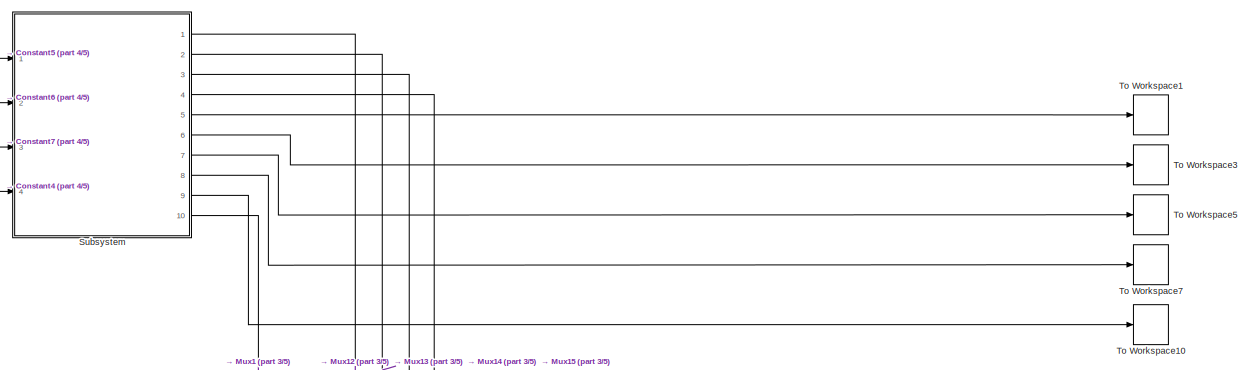
[diagram: root canvas - part 1/5, top right region]
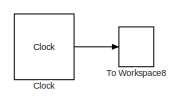
[diagram: root canvas - part 2/5, top left region]
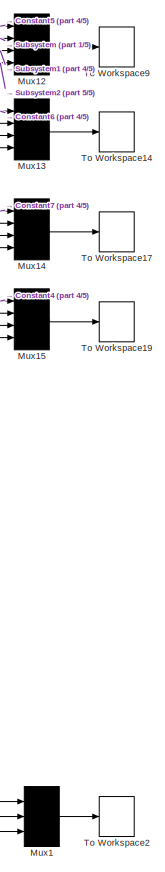
[diagram: root canvas - part 3/5, middle right region]
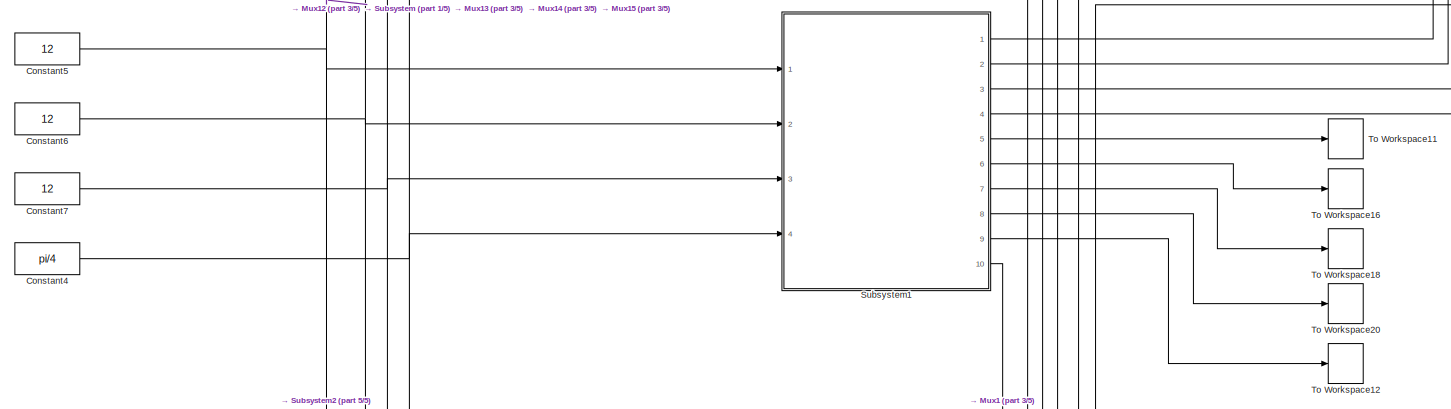
[diagram: root canvas - part 4/5, central region]
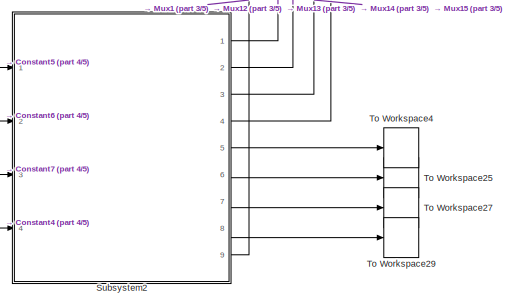
[diagram: root canvas - part 5/5, bottom center region]
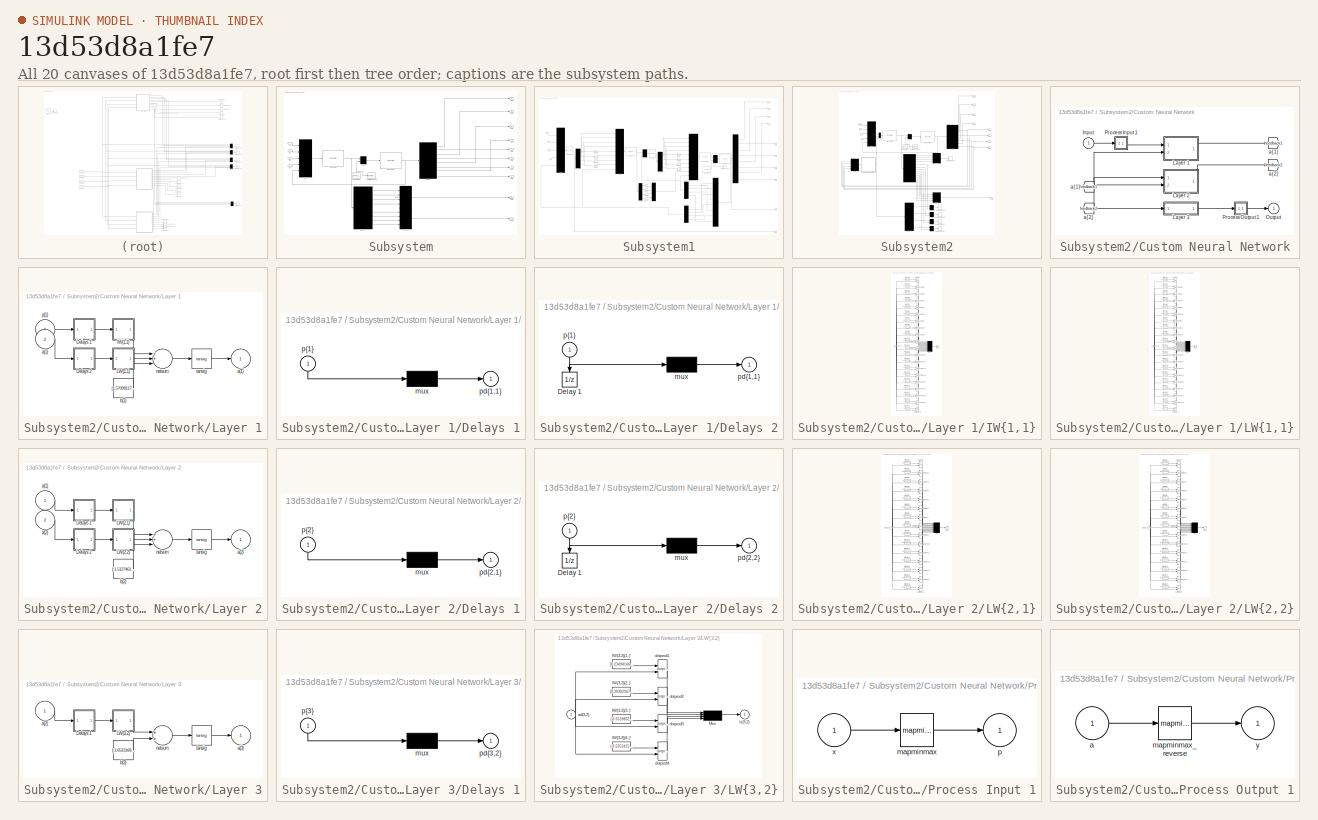
[diagram: thumbnail index - all 20 canvases of the model, root first then tree order]
MODEL slx_13d53d8a1fe7
KIND model
CONFIG AbsTol = auto
CONFIG EnableMultiTasking = off
CONFIG FixedStep = auto
CONFIG MaxStep = auto
CONFIG MinStep = auto
CONFIG RelTol = 1e-3
CONFIG SampleTimeConstraint = Unconstrained
CONFIG Solver = ode45
CONFIG SolverName = ode45
CONFIG StartTime = 0.0
CONFIG StopTime = 100
BLOCK [Clock] Clock
BLOCK [Constant] Constant4
  Value = pi/4
BLOCK [Constant] Constant5
  Value = 12
BLOCK [Constant] Constant6
  Value = 12
BLOCK [Constant] Constant7
  Value = 12
BLOCK [Mux] Mux1
  Inputs = 3
  Ports = [3, 1]
BLOCK [Mux] Mux12
  Ports = [4, 1]
BLOCK [Mux] Mux13
  Ports = [4, 1]
BLOCK [Mux] Mux14
  Ports = [4, 1]
BLOCK [Mux] Mux15
  Ports = [4, 1]
BLOCK [SubSystem] Subsystem
  Ports = [4, 10]
  RequestExecContextInheritance = off
BLOCK [Demux] Subsystem/Demux
  Outputs = 8
  Ports = [1, 8]
BLOCK [Demux] Subsystem/Demux1
  Outputs = 8
  Ports = [1, 8]
BLOCK [Inport] Subsystem/In1
  IconDisplay = Port number
BLOCK [Inport] Subsystem/In2
  IconDisplay = Port number
  Port = 2
BLOCK [Inport] Subsystem/In3
  IconDisplay = Port number
  Port = 3
BLOCK [Inport] Subsystem/In4
  IconDisplay = Port number
  Port = 4
BLOCK [Mux] Subsystem/Mux
  Inputs = 5
  Ports = [5, 1]
BLOCK [Mux] Subsystem/Mux13
  Ports = [4, 1]
BLOCK [Mux] Subsystem/Mux5
  Inputs = 2
  Ports = [2, 1]
BLOCK [Mux] Subsystem/Mux6
  Ports = [4, 1]
BLOCK [Outport] Subsystem/Out1
  IconDisplay = Port number
BLOCK [Outport] Subsystem/Out10
  IconDisplay = Port number
  Port = 10
BLOCK [Outport] Subsystem/Out2
  IconDisplay = Port number
  Port = 2
BLOCK [Outport] Subsystem/Out3
  IconDisplay = Port number
  Port = 3
BLOCK [Outport] Subsystem/Out4
  IconDisplay = Port number
  Port = 4
BLOCK [Outport] Subsystem/Out5
  IconDisplay = Port number
  Port = 5
BLOCK [Outport] Subsystem/Out6
  IconDisplay = Port number
  Port = 6
BLOCK [Outport] Subsystem/Out7
  IconDisplay = Port number
  Port = 7
BLOCK [Outport] Subsystem/Out8
  IconDisplay = Port number
  Port = 8
BLOCK [Outport] Subsystem/Out9
  IconDisplay = Port number
  Port = 9
BLOCK [S-Function] Subsystem/S-Function
  EnableBusSupport = off
  FunctionName = CSMC
  Ports = [1, 1]
  SFcnIsStateOwnerBlock = off
  SFunctionDeploymentMode = off
BLOCK [S-Function] Subsystem/S-Function1
  EnableBusSupport = off
  FunctionName = ROVmodel_CSMC
  Ports = [1, 1]
  SFcnIsStateOwnerBlock = off
  SFunctionDeploymentMode = off
BLOCK [S-Function] Subsystem/S-Function2
  EnableBusSupport = off
  FunctionName = ROVdisturbance
  Ports = [0, 1]
  SFcnIsStateOwnerBlock = off
  SFunctionDeploymentMode = off
BLOCK [ToWorkspace] Subsystem/To Workspace9
  FixptAsFi = on
  MaxDataPoints = inf
  Ports = [1]
  SampleTime = -1
  Save2DSignal = 3-D array (concatenate along third dimension)
  VariableName = Dist
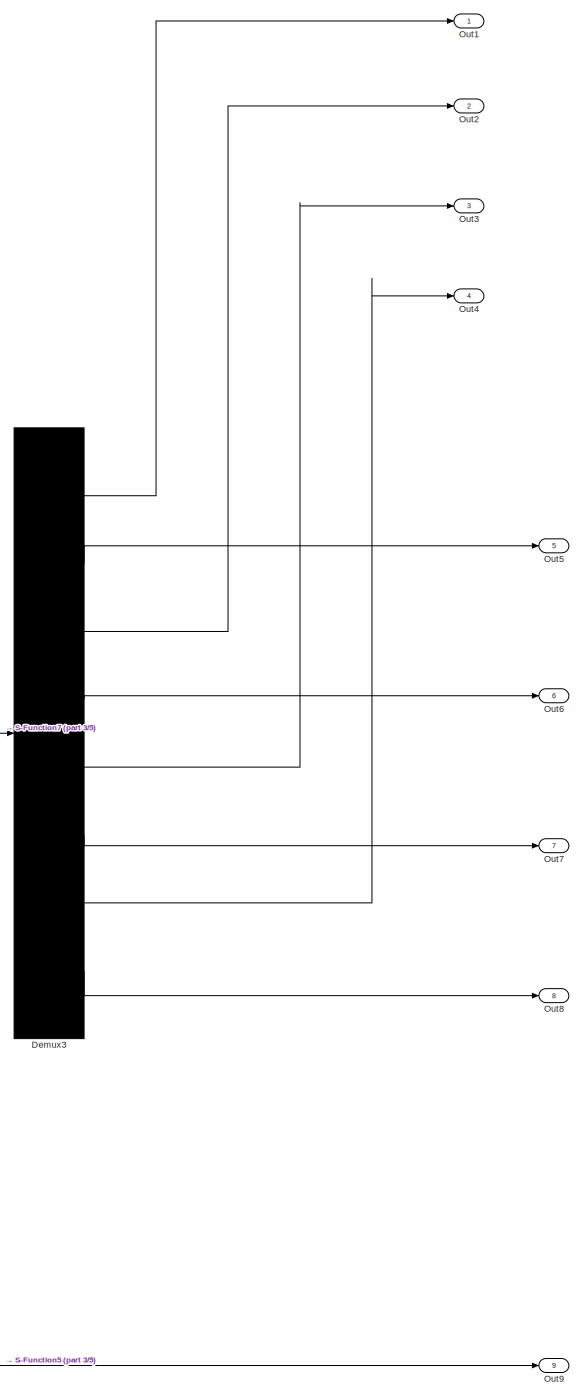
[diagram: Subsystem1 - part 1/5, right side, full height]
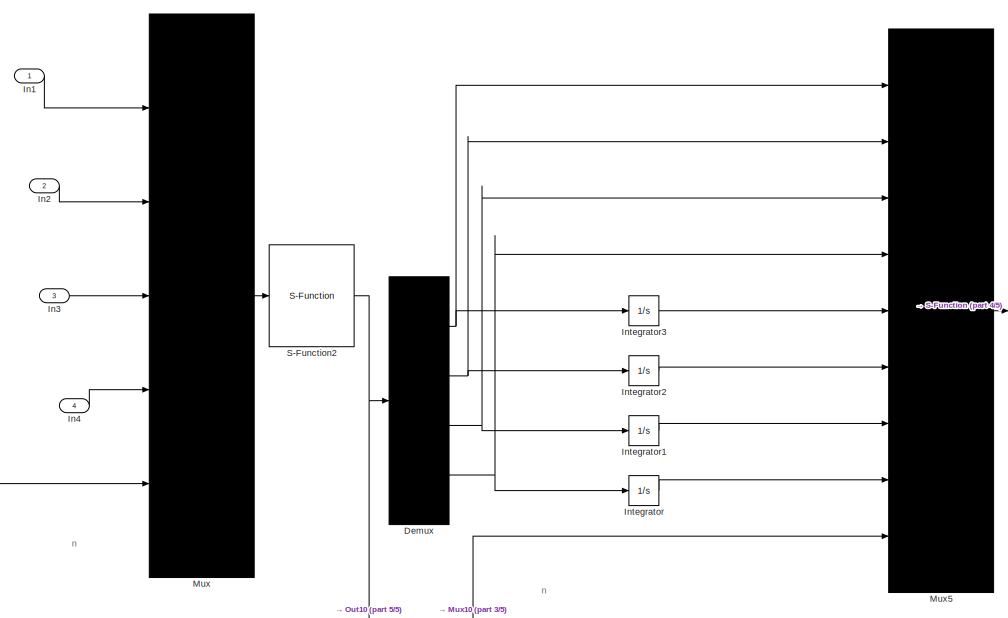
[diagram: Subsystem1 - part 2/5, middle left region]
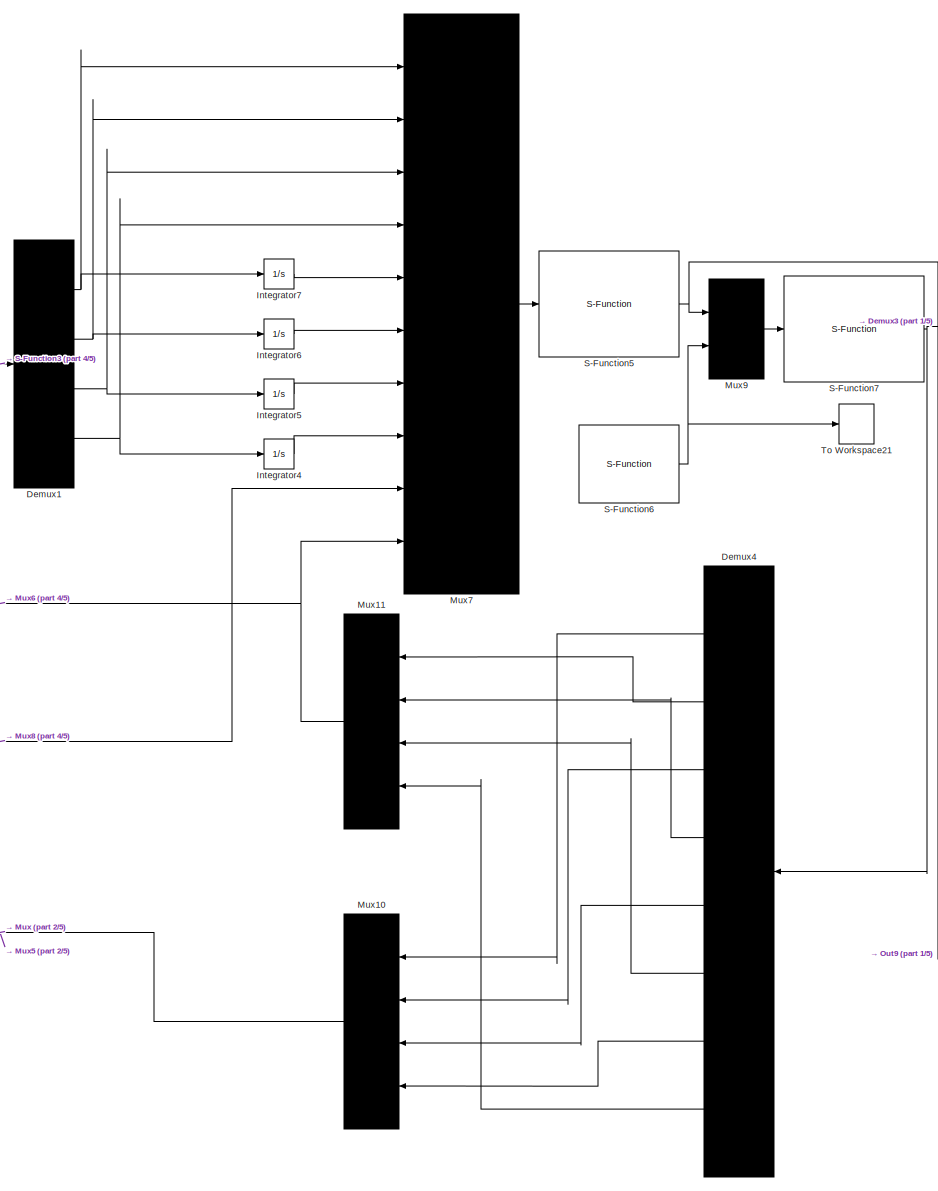
[diagram: Subsystem1 - part 3/5, central region]
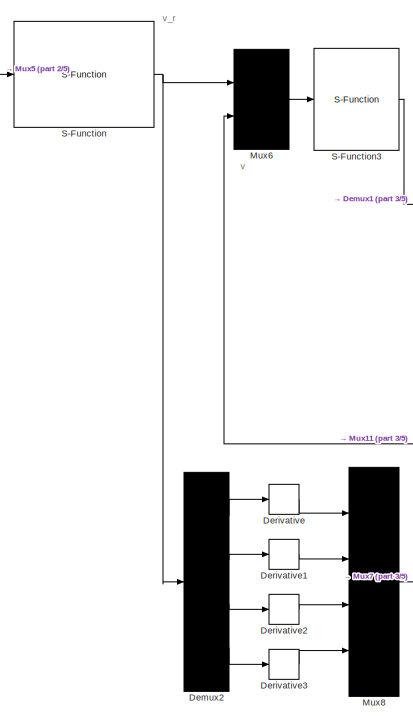
[diagram: Subsystem1 - part 4/5, central region]
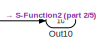
[diagram: Subsystem1 - part 5/5, bottom right region]
BLOCK [SubSystem] Subsystem1
  Ports = [4, 10]
  RequestExecContextInheritance = off
BLOCK [Demux] Subsystem1/Demux
  Ports = [1, 4]
BLOCK [Demux] Subsystem1/Demux1
  Ports = [1, 4]
BLOCK [Demux] Subsystem1/Demux2
  Ports = [1, 4]
BLOCK [Demux] Subsystem1/Demux3
  Outputs = 8
  Ports = [1, 8]
BLOCK [Demux] Subsystem1/Demux4
  Outputs = 8
  Ports = [1, 8]
BLOCK [Derivative] Subsystem1/Derivative
BLOCK [Derivative] Subsystem1/Derivative1
BLOCK [Derivative] Subsystem1/Derivative2
BLOCK [Derivative] Subsystem1/Derivative3
BLOCK [Inport] Subsystem1/In1
  IconDisplay = Port number
BLOCK [Inport] Subsystem1/In2
  IconDisplay = Port number
  Port = 2
BLOCK [Inport] Subsystem1/In3
  IconDisplay = Port number
  Port = 3
BLOCK [Inport] Subsystem1/In4
  IconDisplay = Port number
  Port = 4
BLOCK [Integrator] Subsystem1/Integrator
  Ports = [1, 1]
BLOCK [Integrator] Subsystem1/Integrator1
  Ports = [1, 1]
BLOCK [Integrator] Subsystem1/Integrator2
  Ports = [1, 1]
BLOCK [Integrator] Subsystem1/Integrator3
  Ports = [1, 1]
BLOCK [Integrator] Subsystem1/Integrator4
  Ports = [1, 1]
BLOCK [Integrator] Subsystem1/Integrator5
  Ports = [1, 1]
BLOCK [Integrator] Subsystem1/Integrator6
  Ports = [1, 1]
BLOCK [Integrator] Subsystem1/Integrator7
  Ports = [1, 1]
BLOCK [Mux] Subsystem1/Mux
  Inputs = 5
  Ports = [5, 1]
BLOCK [Mux] Subsystem1/Mux10
  Ports = [4, 1]
BLOCK [Mux] Subsystem1/Mux11
  Ports = [4, 1]
BLOCK [Mux] Subsystem1/Mux5
  Inputs = 9
  Ports = [9, 1]
BLOCK [Mux] Subsystem1/Mux6
  Inputs = 2
  Ports = [2, 1]
BLOCK [Mux] Subsystem1/Mux7
  Inputs = 10
  Ports = [10, 1]
BLOCK [Mux] Subsystem1/Mux8
  Ports = [4, 1]
BLOCK [Mux] Subsystem1/Mux9
  Inputs = 2
  Ports = [2, 1]
BLOCK [Outport] Subsystem1/Out1
  IconDisplay = Port number
BLOCK [Outport] Subsystem1/Out10
  IconDisplay = Port number
  Port = 10
BLOCK [Outport] Subsystem1/Out2
  IconDisplay = Port number
  Port = 2
BLOCK [Outport] Subsystem1/Out3
  IconDisplay = Port number
  Port = 3
BLOCK [Outport] Subsystem1/Out4
  IconDisplay = Port number
  Port = 4
BLOCK [Outport] Subsystem1/Out5
  IconDisplay = Port number
  Port = 5
BLOCK [Outport] Subsystem1/Out6
  IconDisplay = Port number
  Port = 6
BLOCK [Outport] Subsystem1/Out7
  IconDisplay = Port number
  Port = 7
BLOCK [Outport] Subsystem1/Out8
  IconDisplay = Port number
  Port = 8
BLOCK [Outport] Subsystem1/Out9
  IconDisplay = Port number
  Port = 9
BLOCK [S-Function] Subsystem1/S-Function
  EnableBusSupport = off
  FunctionName = outer_ctrl
  Ports = [1, 1]
  SFcnIsStateOwnerBlock = off
  SFunctionDeploymentMode = off
BLOCK [S-Function] Subsystem1/S-Function2
  EnableBusSupport = off
  FunctionName = error_n
  Ports = [1, 1]
  SFcnIsStateOwnerBlock = off
  SFunctionDeploymentMode = off
BLOCK [S-Function] Subsystem1/S-Function3
  EnableBusSupport = off
  FunctionName = error_v
  Ports = [1, 1]
  SFcnIsStateOwnerBlock = off
  SFunctionDeploymentMode = off
BLOCK [S-Function] Subsystem1/S-Function5
  EnableBusSupport = off
  FunctionName = inner_ctrl
  Ports = [1, 1]
  SFcnIsStateOwnerBlock = off
  SFunctionDeploymentMode = off
BLOCK [S-Function] Subsystem1/S-Function6
  EnableBusSupport = off
  FunctionName = ROVdisturbance
  Ports = [0, 1]
  SFcnIsStateOwnerBlock = off
  SFunctionDeploymentMode = off
BLOCK [S-Function] Subsystem1/S-Function7
  EnableBusSupport = off
  FunctionName = ROVplant
  Ports = [1, 1]
  SFcnIsStateOwnerBlock = off
  SFunctionDeploymentMode = off
BLOCK [ToWorkspace] Subsystem1/To Workspace21
  FixptAsFi = on
  MaxDataPoints = inf
  Ports = [1]
  SampleTime = -1
  Save2DSignal = 3-D array (concatenate along third dimension)
  VariableName = Dist1
BLOCK [SubSystem] Subsystem2
  Ports = [4, 9]
  RequestExecContextInheritance = off
BLOCK [SubSystem] Subsystem2/Custom Neural Network
  Ports = [1, 1]
  RequestExecContextInheritance = off
BLOCK [From] Subsystem2/Custom Neural Network/ a{1} 
  GotoTag = feedback1
BLOCK [From] Subsystem2/Custom Neural Network/ a{2} 
  GotoTag = feedback2
BLOCK [Inport] Subsystem2/Custom Neural Network/Input
  IconDisplay = Port number
  PortDimensions = 4
  SampleTime = 1
BLOCK [SubSystem] Subsystem2/Custom Neural Network/Layer 1
  Ports = [2, 1]
  RequestExecContextInheritance = off
BLOCK [SubSystem] Subsystem2/Custom Neural Network/Layer 1/Delays 1
  Ports = [1, 1]
  RequestExecContextInheritance = off
BLOCK [Mux] Subsystem2/Custom Neural Network/Layer 1/Delays 1/mux
  Inputs = 1
  Ports = [1, 1]
BLOCK [Outport] Subsystem2/Custom Neural Network/Layer 1/Delays 1/pd{1,1}
  IconDisplay = Port number
BLOCK [Inport] Subsystem2/Custom Neural Network/Layer 1/Delays 1/p{1}
  IconDisplay = Port number
  PortDimensions = 4
  SampleTime = 1
BLOCK [SubSystem] Subsystem2/Custom Neural Network/Layer 1/Delays 2
  Ports = [1, 1]
  RequestExecContextInheritance = off
BLOCK [UnitDelay] Subsystem2/Custom Neural Network/Layer 1/Delays 2/Delay 1
  InitialCondition = ai_layer_1_delayed_1
BLOCK [Mux] Subsystem2/Custom Neural Network/Layer 1/Delays 2/mux
  Inputs = 1
  Ports = [1, 1]
BLOCK [Outport] Subsystem2/Custom Neural Network/Layer 1/Delays 2/pd{1,1}
  IconDisplay = Port number
BLOCK [Inport] Subsystem2/Custom Neural Network/Layer 1/Delays 2/p{1}
  IconDisplay = Port number
  PortDimensions = 20
  SampleTime = 1
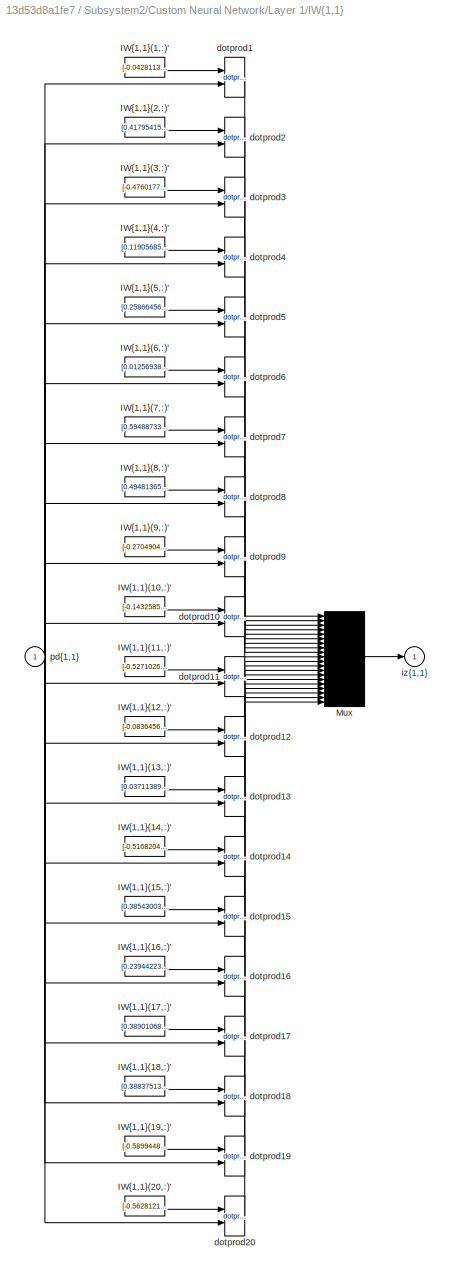
BLOCK [SubSystem] Subsystem2/Custom Neural Network/Layer 1/IW{1,1}
  Ports = [1, 1]
  RequestExecContextInheritance = off
BLOCK [Constant] Subsystem2/Custom Neural Network/Layer 1/IW{1,1}/IW{1,1}(1,:)'
  Value = [-0.042811390033023755119501174704055301845073699951171875;-0.34494124940580495053410459149745292961597442626953125;0.212181792987700124086813957546837627887725830078125;0.19703731840338456482442097694729454815387725830078125]
BLOCK [Constant] Subsystem2/Custom Neural Network/Layer 1/IW{1,1}/IW{1,1}(10,:)'
  Value = [-0.1432585057147908458308194212804664857685565948486328125;-0.153266205858384185756193573979544453322887420654296875;0.49559029394590659034491864076699130237102508544921875;-0.07933482509106119795472267242075758986175060272216796875]
BLOCK [Constant] Subsystem2/Custom Neural Network/Layer 1/IW{1,1}/IW{1,1}(11,:)'
  Value = [-0.5271026828588116774909622108680196106433868408203125;-0.19376380367271484050917251806822605431079864501953125;-0.50126266277864350850990149410790763795375823974609375;-0.1275131171211906500051469492973410524427890777587890625]
BLOCK [Constant] Subsystem2/Custom Neural Network/Layer 1/IW{1,1}/IW{1,1}(12,:)'
  Value = [-0.083645605300920744529236117159598506987094879150390625;0.1272107414484172360769065335261984728276729583740234375;-0.1374343203091800968973501539949211291968822479248046875;0.66581955393483605032400873824371956288814544677734375]
BLOCK [Constant] Subsystem2/Custom Neural Network/Layer 1/IW{1,1}/IW{1,1}(13,:)'
  Value = [0.03711389205480629394084957084487541578710079193115234375;-0.462899083442104508634429294033907353878021240234375;-0.2264716472284484527488501726111280731856822967529296875;0.4688615702267180385121037033968605101108551025390625]
BLOCK [Constant] Subsystem2/Custom Neural Network/Layer 1/IW{1,1}/IW{1,1}(14,:)'
  Value = [-0.5168204278140742236047344704275019466876983642578125;0.45663111946031242904808777893777005374431610107421875;-0.51419835913847655728403651664848439395427703857421875;-0.09691171847871636602089751022504060529172420501708984375]
BLOCK [Constant] Subsystem2/Custom Neural Network/Layer 1/IW{1,1}/IW{1,1}(15,:)'
  Value = [0.385430034255971387668893157751881517469882965087890625;-0.215305325209396214436452510199160315096378326416015625;-0.1868848258074100876502399160017375834286212921142578125;0.39665474045523041457528279352118261158466339111328125]
BLOCK [Constant] Subsystem2/Custom Neural Network/Layer 1/IW{1,1}/IW{1,1}(16,:)'
  Value = [0.2394422361532615173285165610650437884032726287841796875;0.5573707637317522056719099055044353008270263671875;-0.44328627858535185612964824031223542988300323486328125;-0.20052230029704232183718204396427609026432037353515625]
BLOCK [Constant] Subsystem2/Custom Neural Network/Layer 1/IW{1,1}/IW{1,1}(17,:)'
  Value = [0.38901068644869807311437170938006602227687835693359375;-0.427525166182410376602973656190442852675914764404296875;-0.443132878250084905058514550546533428132534027099609375;0.37252488448668785725459429158945567905902862548828125]
BLOCK [Constant] Subsystem2/Custom Neural Network/Layer 1/IW{1,1}/IW{1,1}(18,:)'
  Value = [0.38837513753777053171489797023241408169269561767578125;-0.329414929396628364255406040683737955987453460693359375;0.447224063257221360334625614996184594929218292236328125;-0.293902664542561364857675698658567853271961212158203125]
BLOCK [Constant] Subsystem2/Custom Neural Network/Layer 1/IW{1,1}/IW{1,1}(19,:)'
  Value = [-0.58994484283590320483625646375003270804882049560546875;-0.4543619457979339859576839444343931972980499267578125;-0.38699246687251276366481533841579221189022064208984375;-0.1299714765164118601692422316773445345461368560791015625]
BLOCK [Constant] Subsystem2/Custom Neural Network/Layer 1/IW{1,1}/IW{1,1}(2,:)'
  Value = [0.417954150552907910398658941630856133997440338134765625;0.37950717584964566153615805887966416776180267333984375;-0.444355699691141747820211094222031533718109130859375;0.40455774770315766630801590508781373500823974609375]
BLOCK [Constant] Subsystem2/Custom Neural Network/Layer 1/IW{1,1}/IW{1,1}(20,:)'
  Value = [-0.56281218572056845861339979819604195654392242431640625;-0.1531865678348197923330786807127879001200199127197265625;0.32894636374948527102191064841463230550289154052734375;-0.11506127596662703294061458336727810092270374298095703125]
BLOCK [Constant] Subsystem2/Custom Neural Network/Layer 1/IW{1,1}/IW{1,1}(3,:)'
  Value = [-0.476017735150680909583797983941622078418731689453125;0.372659870345571853089694513982976786792278289794921875;0.15761264234491967339835127859259955585002899169921875;-0.301498932852593437559107769629918038845062255859375]
BLOCK [Constant] Subsystem2/Custom Neural Network/Layer 1/IW{1,1}/IW{1,1}(4,:)'
  Value = [0.1190568503323596039056297968272701837122440338134765625;0.025251810519317963166230356364394538104534149169921875;-0.01463313633015732827258315040808156481944024562835693359375;0.0799177967721290960501079325695172883570194244384765625]
BLOCK [Constant] Subsystem2/Custom Neural Network/Layer 1/IW{1,1}/IW{1,1}(5,:)'
  Value = [0.2586645679057075764006867757416330277919769287109375;-0.359798037926290892318803571470198221504688262939453125;0.49791321437721602904957762802951037883758544921875;-0.2408924072199911947667061440370162017643451690673828125]
BLOCK [Constant] Subsystem2/Custom Neural Network/Layer 1/IW{1,1}/IW{1,1}(6,:)'
  Value = [0.01256938548635226811367449073486568522639572620391845703125;0.422855987628569407466017082697362639009952545166015625;0.482605939133784911376778836711309850215911865234375;-0.478909325852367839804202276354772038757801055908203125]
BLOCK [Constant] Subsystem2/Custom Neural Network/Layer 1/IW{1,1}/IW{1,1}(7,:)'
  Value = [0.5948873384524977492304742554551921784877777099609375;0.281306962804711513381761278651538304984569549560546875;-0.1572109737119190830956227955539361573755741119384765625;0.1660798915358044636203516120076528750360012054443359375]
BLOCK [Constant] Subsystem2/Custom Neural Network/Layer 1/IW{1,1}/IW{1,1}(8,:)'
  Value = [0.494813650227310108942191391179221682250499725341796875;-0.1661270735577930202087060251869843341410160064697265625;-0.323120860559985623172707391859148629009723663330078125;-0.120857806854206606406165747102932073175907135009765625]
BLOCK [Constant] Subsystem2/Custom Neural Network/Layer 1/IW{1,1}/IW{1,1}(9,:)'
  Value = [-0.27049047417204652443700751973665319383144378662109375;-0.030493674231205934732624740490791737101972103118896484375;-0.30275890613240985516085856943391263484954833984375;0.32392632672577914565437140481662936508655548095703125]
BLOCK [Mux] Subsystem2/Custom Neural Network/Layer 1/IW{1,1}/Mux
  Inputs = 20
  Ports = [20, 1]
BLOCK [Reference] Subsystem2/Custom Neural Network/Layer 1/IW{1,1}/dotprod1  REF=neural/Weight Functions/dotprod
  Ports = [2, 1]
  SourceBlock = neural/Weight Functions/dotprod
  SourceProductBaseCode = NN
  SourceProductName = Neural Network Toolbox
  SourceType = DOTPROD
BLOCK [Reference] Subsystem2/Custom Neural Network/Layer 1/IW{1,1}/dotprod10  REF=neural/Weight Functions/dotprod
  Ports = [2, 1]
  SourceBlock = neural/Weight Functions/dotprod
  SourceProductBaseCode = NN
  SourceProductName = Neural Network Toolbox
  SourceType = DOTPROD
BLOCK [Reference] Subsystem2/Custom Neural Network/Layer 1/IW{1,1}/dotprod11  REF=neural/Weight Functions/dotprod
  Ports = [2, 1]
  SourceBlock = neural/Weight Functions/dotprod
  SourceProductBaseCode = NN
  SourceProductName = Neural Network Toolbox
  SourceType = DOTPROD
BLOCK [Reference] Subsystem2/Custom Neural Network/Layer 1/IW{1,1}/dotprod12  REF=neural/Weight Functions/dotprod
  Ports = [2, 1]
  SourceBlock = neural/Weight Functions/dotprod
  SourceProductBaseCode = NN
  SourceProductName = Neural Network Toolbox
  SourceType = DOTPROD
BLOCK [Reference] Subsystem2/Custom Neural Network/Layer 1/IW{1,1}/dotprod13  REF=neural/Weight Functions/dotprod
  Ports = [2, 1]
  SourceBlock = neural/Weight Functions/dotprod
  SourceProductBaseCode = NN
  SourceProductName = Neural Network Toolbox
  SourceType = DOTPROD
BLOCK [Reference] Subsystem2/Custom Neural Network/Layer 1/IW{1,1}/dotprod14  REF=neural/Weight Functions/dotprod
  Ports = [2, 1]
  SourceBlock = neural/Weight Functions/dotprod
  SourceProductBaseCode = NN
  SourceProductName = Neural Network Toolbox
  SourceType = DOTPROD
BLOCK [Reference] Subsystem2/Custom Neural Network/Layer 1/IW{1,1}/dotprod15  REF=neural/Weight Functions/dotprod
  Ports = [2, 1]
  SourceBlock = neural/Weight Functions/dotprod
  SourceProductBaseCode = NN
  SourceProductName = Neural Network Toolbox
  SourceType = DOTPROD
BLOCK [Reference] Subsystem2/Custom Neural Network/Layer 1/IW{1,1}/dotprod16  REF=neural/Weight Functions/dotprod
  Ports = [2, 1]
  SourceBlock = neural/Weight Functions/dotprod
  SourceProductBaseCode = NN
  SourceProductName = Neural Network Toolbox
  SourceType = DOTPROD
BLOCK [Reference] Subsystem2/Custom Neural Network/Layer 1/IW{1,1}/dotprod17  REF=neural/Weight Functions/dotprod
  Ports = [2, 1]
  SourceBlock = neural/Weight Functions/dotprod
  SourceProductBaseCode = NN
  SourceProductName = Neural Network Toolbox
  SourceType = DOTPROD
BLOCK [Reference] Subsystem2/Custom Neural Network/Layer 1/IW{1,1}/dotprod18  REF=neural/Weight Functions/dotprod
  Ports = [2, 1]
  SourceBlock = neural/Weight Functions/dotprod
  SourceProductBaseCode = NN
  SourceProductName = Neural Network Toolbox
  SourceType = DOTPROD
BLOCK [Reference] Subsystem2/Custom Neural Network/Layer 1/IW{1,1}/dotprod19  REF=neural/Weight Functions/dotprod
  Ports = [2, 1]
  SourceBlock = neural/Weight Functions/dotprod
  SourceProductBaseCode = NN
  SourceProductName = Neural Network Toolbox
  SourceType = DOTPROD
BLOCK [Reference] Subsystem2/Custom Neural Network/Layer 1/IW{1,1}/dotprod2  REF=neural/Weight Functions/dotprod
  Ports = [2, 1]
  SourceBlock = neural/Weight Functions/dotprod
  SourceProductBaseCode = NN
  SourceProductName = Neural Network Toolbox
  SourceType = DOTPROD
BLOCK [Reference] Subsystem2/Custom Neural Network/Layer 1/IW{1,1}/dotprod20  REF=neural/Weight Functions/dotprod
  Ports = [2, 1]
  SourceBlock = neural/Weight Functions/dotprod
  SourceProductBaseCode = NN
  SourceProductName = Neural Network Toolbox
  SourceType = DOTPROD
BLOCK [Reference] Subsystem2/Custom Neural Network/Layer 1/IW{1,1}/dotprod3  REF=neural/Weight Functions/dotprod
  Ports = [2, 1]
  SourceBlock = neural/Weight Functions/dotprod
  SourceProductBaseCode = NN
  SourceProductName = Neural Network Toolbox
  SourceType = DOTPROD
BLOCK [Reference] Subsystem2/Custom Neural Network/Layer 1/IW{1,1}/dotprod4  REF=neural/Weight Functions/dotprod
  Ports = [2, 1]
  SourceBlock = neural/Weight Functions/dotprod
  SourceProductBaseCode = NN
  SourceProductName = Neural Network Toolbox
  SourceType = DOTPROD
BLOCK [Reference] Subsystem2/Custom Neural Network/Layer 1/IW{1,1}/dotprod5  REF=neural/Weight Functions/dotprod
  Ports = [2, 1]
  SourceBlock = neural/Weight Functions/dotprod
  SourceProductBaseCode = NN
  SourceProductName = Neural Network Toolbox
  SourceType = DOTPROD
BLOCK [Reference] Subsystem2/Custom Neural Network/Layer 1/IW{1,1}/dotprod6  REF=neural/Weight Functions/dotprod
  Ports = [2, 1]
  SourceBlock = neural/Weight Functions/dotprod
  SourceProductBaseCode = NN
  SourceProductName = Neural Network Toolbox
  SourceType = DOTPROD
BLOCK [Reference] Subsystem2/Custom Neural Network/Layer 1/IW{1,1}/dotprod7  REF=neural/Weight Functions/dotprod
  Ports = [2, 1]
  SourceBlock = neural/Weight Functions/dotprod
  SourceProductBaseCode = NN
  SourceProductName = Neural Network Toolbox
  SourceType = DOTPROD
BLOCK [Reference] Subsystem2/Custom Neural Network/Layer 1/IW{1,1}/dotprod8  REF=neural/Weight Functions/dotprod
  Ports = [2, 1]
  SourceBlock = neural/Weight Functions/dotprod
  SourceProductBaseCode = NN
  SourceProductName = Neural Network Toolbox
  SourceType = DOTPROD
BLOCK [Reference] Subsystem2/Custom Neural Network/Layer 1/IW{1,1}/dotprod9  REF=neural/Weight Functions/dotprod
  Ports = [2, 1]
  SourceBlock = neural/Weight Functions/dotprod
  SourceProductBaseCode = NN
  SourceProductName = Neural Network Toolbox
  SourceType = DOTPROD
BLOCK [Outport] Subsystem2/Custom Neural Network/Layer 1/IW{1,1}/iz{1,1}
  IconDisplay = Port number
BLOCK [Inport] Subsystem2/Custom Neural Network/Layer 1/IW{1,1}/pd{1,1}
  IconDisplay = Port number
  PortDimensions = 4
  SampleTime = 1
BLOCK [SubSystem] Subsystem2/Custom Neural Network/Layer 1/LW{1,1}
  Ports = [1, 1]
  RequestExecContextInheritance = off
BLOCK [Constant] Subsystem2/Custom Neural Network/Layer 1/LW{1,1}/IW{1,1}(1,:)'
  Value = [0.2278987165494096578388649732005433179438114166259765625;0.240540154904058389728760403158958069980144500732421875;-0.08228071789715719897007062400007271207869052886962890625;0.4457988335202587304451071759103797376155853271484375;-0.23129699864569508438449929599300958216190338134765625;-0.49692828504273933720725153762032277882099151611328125;0.38560473208843759618247304388205520808696746826171875...<+737ch>
BLOCK [Constant] Subsystem2/Custom Neural Network/Layer 1/LW{1,1}/IW{1,1}(10,:)'
  Value = [0.420632624664030119188140588448732160031795501708984375;0.429185444508361990667566487900330685079097747802734375;-0.491659080709817175591780369359184987843036651611328125;0.182452654614607079341936923810862936079502105712890625;-0.10699046596342180748262506995160947553813457489013671875;0.1602960437006126503955982798288459889590740203857421875;-0.3894669535931031267850244148576166480779647827148...<+747ch>
BLOCK [Constant] Subsystem2/Custom Neural Network/Layer 1/LW{1,1}/IW{1,1}(11,:)'
  Value = [-0.13295299644515246040299416563357226550579071044921875;-0.34257970274611437844214378856122493743896484375;-0.50546742207309069971898907169816084206104278564453125;0.375317987307353051473768346113502047955989837646484375;0.293111656529973618745543717523105442523956298828125;-0.4780711225226854654835051405825652182102203369140625;-0.29780200740318452101718094127136282622814178466796875;0.12431875...<+736ch>
BLOCK [Constant] Subsystem2/Custom Neural Network/Layer 1/LW{1,1}/IW{1,1}(12,:)'
  Value = [-0.378287689491962009213921191985718905925750732421875;0.31412463184470540422665862934081815183162689208984375;-0.245211026062742920572645743959583342075347900390625;-0.347387547677588059968911693431437015533447265625;-0.5031677654191166748631758309784345328807830810546875;-0.50758261729631259928652298185625113546848297119140625;0.37116161778317968700235951473587192595005035400390625;-0.037757164...<+736ch>
BLOCK [Constant] Subsystem2/Custom Neural Network/Layer 1/LW{1,1}/IW{1,1}(13,:)'
  Value = [0.41575461245577349789215304554090835154056549072265625;-0.409758839927184037588148157738032750785350799560546875;0.0292141310860018731110354650581939495168626308441162109375;0.32632919895820433620059475288144312798976898193359375;-0.39978185631407348044064065106795169413089752197265625;-0.419945798962307659252246594405733048915863037109375;-0.14467887688662336986844536568241892382502555847167968...<+748ch>
BLOCK [Constant] Subsystem2/Custom Neural Network/Layer 1/LW{1,1}/IW{1,1}(14,:)'
  Value = [0.1070947730439226475152025841452996246516704559326171875;-0.271684022564260552190518183124368079006671905517578125;0.28236026004421599377991469737025909125804901123046875;0.2240856228544926553869487406700500287115573883056640625;-0.424180068223444506347874494167626835405826568603515625;0.09805112035332404218923585403899778611958026885986328125;-0.2575719516105017814489031025004805997014045715332...<+739ch>
BLOCK [Constant] Subsystem2/Custom Neural Network/Layer 1/LW{1,1}/IW{1,1}(15,:)'
  Value = [-0.136187296441313610007028955806163139641284942626953125;0.209037331339636534011106050456874072551727294921875;-0.32626772882534027520051722603966481983661651611328125;-0.462079150500124213873931466878275386989116668701171875;-0.285236058869271780213949796234373934566974639892578125;0.1559960849596407073125448050632257945835590362548828125;0.36825294505482997209355744416825473308563232421875;0.1...<+735ch>
BLOCK [Constant] Subsystem2/Custom Neural Network/Layer 1/LW{1,1}/IW{1,1}(16,:)'
  Value = [-0.384523612583706597689570116926915943622589111328125;-0.206157590542222102225622393234516493976116180419921875;0.4554611951382001588939374414621852338314056396484375;0.49174573636799523423945856848149560391902923583984375;-0.1801231476021115385233173356027691625058650970458984375;0.4683739136963203097963059917674399912357330322265625;0.394822850463422636568822099434328265488147735595703125;0.39...<+740ch>
BLOCK [Constant] Subsystem2/Custom Neural Network/Layer 1/LW{1,1}/IW{1,1}(17,:)'
  Value = [0.44098587065739192070168428472243249416351318359375;-0.08788059273859938347328579766326583921909332275390625;-0.308675876398948501044827708028606139123439788818359375;-0.221486569567091506893774521813611499965190887451171875;0.2178678865951073628792755698668770492076873779296875;-0.289200773370994423938640238702646456658840179443359375;0.35306632808482019125762008115998469293117523193359375;-0.4...<+736ch>
BLOCK [Constant] Subsystem2/Custom Neural Network/Layer 1/LW{1,1}/IW{1,1}(18,:)'
  Value = [-0.491929946506200088673921300141955725848674774169921875;-0.2126767242213216391188979059734265320003032684326171875;-0.1009912537251317077302559255258529447019100189208984375;0.3217560834001089720146637773723341524600982666015625;0.051956008299841281716791030476088053546845912933349609375;-0.1660321893331526965642552795543451793491840362548828125;0.02726066632766843342294826868510426720604300498...<+761ch>
BLOCK [Constant] Subsystem2/Custom Neural Network/Layer 1/LW{1,1}/IW{1,1}(19,:)'
  Value = [0.1701423142892309059437394580527325160801410675048828125;-0.411160005228003611055243027294636704027652740478515625;0.04775542972130684959974900039014755748212337493896484375;0.2284830513994409451061784466219251044094562530517578125;-0.07416597601648027004994645494662108831107616424560546875;0.058993659299435431686564612618894898332655429840087890625;-0.0439948339273637453739063118973717791959643...<+755ch>
BLOCK [Constant] Subsystem2/Custom Neural Network/Layer 1/LW{1,1}/IW{1,1}(2,:)'
  Value = [0.05994028480322521890144571443670429289340972900390625;-0.08139306170899605896718043140936060808598995208740234375;0.37859367841592528325378452791483141481876373291015625;-0.28921655327229156551283040244015865027904510498046875;-0.392439976848181715229912924769450910389423370361328125;0.396248727965390068472828488665982149541378021240234375;-0.3554873052677731681825434861821122467517852783203125...<+744ch>
BLOCK [Constant] Subsystem2/Custom Neural Network/Layer 1/LW{1,1}/IW{1,1}(20,:)'
  Value = [-0.4207773228277627008964145716163329780101776123046875;0.61274610734971990400055119607714004814624786376953125;-0.46890358589581782045030422523268498480319976806640625;0.421025844859461317870596985812881030142307281494140625;-0.254298671278955612518046791592496447265148162841796875;0.253825658806738962969262729529873467981815338134765625;0.06416183898043288647006221481206011958420276641845703125...<+752ch>
BLOCK [Constant] Subsystem2/Custom Neural Network/Layer 1/LW{1,1}/IW{1,1}(3,:)'
  Value = [-0.1539811054447259019983818006949150003492832183837890625;-0.2274987476907101846546055412545683793723583221435546875;0.286517531317783291644474275017273612320423126220703125;-9.4276511529738939686173804233249029493890702724456787109375e-05;-0.49053060353080557565164099287358112633228302001953125;-0.313030491451828873916696238666190765798091888427734375;-0.3658368261830309275950412484235130250453...<+760ch>
BLOCK [Constant] Subsystem2/Custom Neural Network/Layer 1/LW{1,1}/IW{1,1}(4,:)'
  Value = [-0.258515043540460565107963475384167395532131195068359375;-0.4211939696771513919060225816792808473110198974609375;0.52216714859414603555620715269469656050205230712890625;-0.393692104389318731083591274000355042517185211181640625;-0.369465419709244347057364166175830177962779998779296875;0.2025300288650582480887152314608101733028888702392578125;-0.5166403130084594730320191047212574630975723266601562...<+737ch>
BLOCK [Constant] Subsystem2/Custom Neural Network/Layer 1/LW{1,1}/IW{1,1}(5,:)'
  Value = [-0.0167471374249104666687149034487447352148592472076416015625;-0.1403490032915202523344788687609252519905567169189453125;0.06539080578002652577307429737629718147218227386474609375;-0.1072757424021300864946937281274585984647274017333984375;-0.187929354284938898711487809123354963958263397216796875;-0.381491903135239507349751875153742730617523193359375;0.049629414578369744626140658283475204370915889...<+764ch>
BLOCK [Constant] Subsystem2/Custom Neural Network/Layer 1/LW{1,1}/IW{1,1}(6,:)'
  Value = [0.3981536228839750446439893494243733584880828857421875;-0.463262998085407551318581909072236157953739166259765625;0.307467747633039134580457130141439847648143768310546875;0.19670090243097793081261670522508211433887481689453125;-0.07431367785636679157423856167952180840075016021728515625;-0.30532129558632081778313249742495827376842498779296875;-0.32232627374899125438645342001109384000301361083984375...<+741ch>
BLOCK [Constant] Subsystem2/Custom Neural Network/Layer 1/LW{1,1}/IW{1,1}(7,:)'
  Value = [0.376732950367336727470757296032388694584369659423828125;-0.34110606780804475501867045750259421765804290771484375;-0.428897245916350533523342392072663642466068267822265625;-0.42202281742953717813549019410856999456882476806640625;0.09229029021692945755628301185424788855016231536865234375;-0.28676061684988851663291598015348426997661590576171875;-0.258405950729481137528864564956165850162506103515625...<+741ch>
BLOCK [Constant] Subsystem2/Custom Neural Network/Layer 1/LW{1,1}/IW{1,1}(8,:)'
  Value = [0.03936558636368105157377073055613436736166477203369140625;0.377442071789987065866256443769088946282863616943359375;0.284083965870056298630430546836578287184238433837890625;0.581018667978522973527333306265063583850860595703125;-0.50854269744919256002191332299844361841678619384765625;0.32517991331879481098354744972311891615390777587890625;0.07405993707905016154580124521089601330459117889404296875;...<+747ch>
BLOCK [Constant] Subsystem2/Custom Neural Network/Layer 1/LW{1,1}/IW{1,1}(9,:)'
  Value = [0.4824204354555963192296985653229057788848876953125;-0.03494619306651880474845484059187583625316619873046875;-0.2174074457393145587413840758017613552510738372802734375;-0.210770258029754631312613355476059950888156890869140625;0.350617376357728105507050031519611366093158721923828125;-0.1497310545967961703528459338485845364630222320556640625;0.287690321438704488254956004311679862439632415771484375;...<+743ch>
BLOCK [Mux] Subsystem2/Custom Neural Network/Layer 1/LW{1,1}/Mux
  Inputs = 20
  Ports = [20, 1]
BLOCK [Inport] Subsystem2/Custom Neural Network/Layer 1/LW{1,1}/ad{1,1}
  IconDisplay = Port number
  PortDimensions = 20
  SampleTime = 1
BLOCK [Reference] Subsystem2/Custom Neural Network/Layer 1/LW{1,1}/dotprod1  REF=neural/Weight Functions/dotprod
  Ports = [2, 1]
  SourceBlock = neural/Weight Functions/dotprod
  SourceProductBaseCode = NN
  SourceProductName = Neural Network Toolbox
  SourceType = DOTPROD
BLOCK [Reference] Subsystem2/Custom Neural Network/Layer 1/LW{1,1}/dotprod10  REF=neural/Weight Functions/dotprod
  Ports = [2, 1]
  SourceBlock = neural/Weight Functions/dotprod
  SourceProductBaseCode = NN
  SourceProductName = Neural Network Toolbox
  SourceType = DOTPROD
BLOCK [Reference] Subsystem2/Custom Neural Network/Layer 1/LW{1,1}/dotprod11  REF=neural/Weight Functions/dotprod
  Ports = [2, 1]
  SourceBlock = neural/Weight Functions/dotprod
  SourceProductBaseCode = NN
  SourceProductName = Neural Network Toolbox
  SourceType = DOTPROD
BLOCK [Reference] Subsystem2/Custom Neural Network/Layer 1/LW{1,1}/dotprod12  REF=neural/Weight Functions/dotprod
  Ports = [2, 1]
  SourceBlock = neural/Weight Functions/dotprod
  SourceProductBaseCode = NN
  SourceProductName = Neural Network Toolbox
  SourceType = DOTPROD
BLOCK [Reference] Subsystem2/Custom Neural Network/Layer 1/LW{1,1}/dotprod13  REF=neural/Weight Functions/dotprod
  Ports = [2, 1]
  SourceBlock = neural/Weight Functions/dotprod
  SourceProductBaseCode = NN
  SourceProductName = Neural Network Toolbox
  SourceType = DOTPROD
BLOCK [Reference] Subsystem2/Custom Neural Network/Layer 1/LW{1,1}/dotprod14  REF=neural/Weight Functions/dotprod
  Ports = [2, 1]
  SourceBlock = neural/Weight Functions/dotprod
  SourceProductBaseCode = NN
  SourceProductName = Neural Network Toolbox
  SourceType = DOTPROD
BLOCK [Reference] Subsystem2/Custom Neural Network/Layer 1/LW{1,1}/dotprod15  REF=neural/Weight Functions/dotprod
  Ports = [2, 1]
  SourceBlock = neural/Weight Functions/dotprod
  SourceProductBaseCode = NN
  SourceProductName = Neural Network Toolbox
  SourceType = DOTPROD
BLOCK [Reference] Subsystem2/Custom Neural Network/Layer 1/LW{1,1}/dotprod16  REF=neural/Weight Functions/dotprod
  Ports = [2, 1]
  SourceBlock = neural/Weight Functions/dotprod
  SourceProductBaseCode = NN
  SourceProductName = Neural Network Toolbox
  SourceType = DOTPROD
BLOCK [Reference] Subsystem2/Custom Neural Network/Layer 1/LW{1,1}/dotprod17  REF=neural/Weight Functions/dotprod
  Ports = [2, 1]
  SourceBlock = neural/Weight Functions/dotprod
  SourceProductBaseCode = NN
  SourceProductName = Neural Network Toolbox
  SourceType = DOTPROD
BLOCK [Reference] Subsystem2/Custom Neural Network/Layer 1/LW{1,1}/dotprod18  REF=neural/Weight Functions/dotprod
  Ports = [2, 1]
  SourceBlock = neural/Weight Functions/dotprod
  SourceProductBaseCode = NN
  SourceProductName = Neural Network Toolbox
  SourceType = DOTPROD
BLOCK [Reference] Subsystem2/Custom Neural Network/Layer 1/LW{1,1}/dotprod19  REF=neural/Weight Functions/dotprod
  Ports = [2, 1]
  SourceBlock = neural/Weight Functions/dotprod
  SourceProductBaseCode = NN
  SourceProductName = Neural Network Toolbox
  SourceType = DOTPROD
BLOCK [Reference] Subsystem2/Custom Neural Network/Layer 1/LW{1,1}/dotprod2  REF=neural/Weight Functions/dotprod
  Ports = [2, 1]
  SourceBlock = neural/Weight Functions/dotprod
  SourceProductBaseCode = NN
  SourceProductName = Neural Network Toolbox
  SourceType = DOTPROD
BLOCK [Reference] Subsystem2/Custom Neural Network/Layer 1/LW{1,1}/dotprod20  REF=neural/Weight Functions/dotprod
  Ports = [2, 1]
  SourceBlock = neural/Weight Functions/dotprod
  SourceProductBaseCode = NN
  SourceProductName = Neural Network Toolbox
  SourceType = DOTPROD
BLOCK [Reference] Subsystem2/Custom Neural Network/Layer 1/LW{1,1}/dotprod3  REF=neural/Weight Functions/dotprod
  Ports = [2, 1]
  SourceBlock = neural/Weight Functions/dotprod
  SourceProductBaseCode = NN
  SourceProductName = Neural Network Toolbox
  SourceType = DOTPROD
BLOCK [Reference] Subsystem2/Custom Neural Network/Layer 1/LW{1,1}/dotprod4  REF=neural/Weight Functions/dotprod
  Ports = [2, 1]
  SourceBlock = neural/Weight Functions/dotprod
  SourceProductBaseCode = NN
  SourceProductName = Neural Network Toolbox
  SourceType = DOTPROD
BLOCK [Reference] Subsystem2/Custom Neural Network/Layer 1/LW{1,1}/dotprod5  REF=neural/Weight Functions/dotprod
  Ports = [2, 1]
  SourceBlock = neural/Weight Functions/dotprod
  SourceProductBaseCode = NN
  SourceProductName = Neural Network Toolbox
  SourceType = DOTPROD
BLOCK [Reference] Subsystem2/Custom Neural Network/Layer 1/LW{1,1}/dotprod6  REF=neural/Weight Functions/dotprod
  Ports = [2, 1]
  SourceBlock = neural/Weight Functions/dotprod
  SourceProductBaseCode = NN
  SourceProductName = Neural Network Toolbox
  SourceType = DOTPROD
BLOCK [Reference] Subsystem2/Custom Neural Network/Layer 1/LW{1,1}/dotprod7  REF=neural/Weight Functions/dotprod
  Ports = [2, 1]
  SourceBlock = neural/Weight Functions/dotprod
  SourceProductBaseCode = NN
  SourceProductName = Neural Network Toolbox
  SourceType = DOTPROD
BLOCK [Reference] Subsystem2/Custom Neural Network/Layer 1/LW{1,1}/dotprod8  REF=neural/Weight Functions/dotprod
  Ports = [2, 1]
  SourceBlock = neural/Weight Functions/dotprod
  SourceProductBaseCode = NN
  SourceProductName = Neural Network Toolbox
  SourceType = DOTPROD
BLOCK [Reference] Subsystem2/Custom Neural Network/Layer 1/LW{1,1}/dotprod9  REF=neural/Weight Functions/dotprod
  Ports = [2, 1]
  SourceBlock = neural/Weight Functions/dotprod
  SourceProductBaseCode = NN
  SourceProductName = Neural Network Toolbox
  SourceType = DOTPROD
BLOCK [Outport] Subsystem2/Custom Neural Network/Layer 1/LW{1,1}/lz{1,1}
  IconDisplay = Port number
BLOCK [Outport] Subsystem2/Custom Neural Network/Layer 1/a{1}
  IconDisplay = Port number
  InitialOutput = [0;0;0;0;0;0;0;0;0;0;0;0;0;0;0;0;0;0;0;0]
BLOCK [Inport] Subsystem2/Custom Neural Network/Layer 1/a{1} 
  IconDisplay = Port number
  Port = 2
  PortDimensions = 20
  SampleTime = 1
BLOCK [Constant] Subsystem2/Custom Neural Network/Layer 1/b{1}
  Value = [1.5709811764087333596506823596428148448467254638671875;-1.422432849296332957322874790406785905361175537109375;1.257830636243737476576143308193422853946685791015625;-1.0965606272778114504973245857399888336658477783203125;-0.93559678076312768890687721068388782441616058349609375;-0.73655566333232591613722206602687947452068328857421875;-0.50859059257384853225403276155702769756317138671875;-0.36613099...<+719ch>
BLOCK [Sum] Subsystem2/Custom Neural Network/Layer 1/netsum
  Inputs = 3
  Ports = [3, 1]
BLOCK [Inport] Subsystem2/Custom Neural Network/Layer 1/p{1}
  IconDisplay = Port number
  PortDimensions = 4
  SampleTime = 1
BLOCK [Reference] Subsystem2/Custom Neural Network/Layer 1/tansig  REF=neural/Transfer Functions/tansig
  Ports = [1, 1]
  SourceBlock = neural/Transfer Functions/tansig
  SourceProductBaseCode = NN
  SourceProductName = Neural Network Toolbox
  SourceType = TANSIG
BLOCK [SubSystem] Subsystem2/Custom Neural Network/Layer 2
  Ports = [2, 1]
  RequestExecContextInheritance = off
BLOCK [SubSystem] Subsystem2/Custom Neural Network/Layer 2/Delays 1
  Ports = [1, 1]
  RequestExecContextInheritance = off
BLOCK [Mux] Subsystem2/Custom Neural Network/Layer 2/Delays 1/mux
  Inputs = 1
  Ports = [1, 1]
BLOCK [Outport] Subsystem2/Custom Neural Network/Layer 2/Delays 1/pd{2,1}
  IconDisplay = Port number
BLOCK [Inport] Subsystem2/Custom Neural Network/Layer 2/Delays 1/p{2}
  IconDisplay = Port number
  PortDimensions = 20
  SampleTime = 1
BLOCK [SubSystem] Subsystem2/Custom Neural Network/Layer 2/Delays 2
  Ports = [1, 1]
  RequestExecContextInheritance = off
BLOCK [UnitDelay] Subsystem2/Custom Neural Network/Layer 2/Delays 2/Delay 1
  InitialCondition = ai_layer_2_delayed_1
BLOCK [Mux] Subsystem2/Custom Neural Network/Layer 2/Delays 2/mux
  Inputs = 1
  Ports = [1, 1]
BLOCK [Outport] Subsystem2/Custom Neural Network/Layer 2/Delays 2/pd{2,2}
  IconDisplay = Port number
BLOCK [Inport] Subsystem2/Custom Neural Network/Layer 2/Delays 2/p{2}
  IconDisplay = Port number
  PortDimensions = 15
  SampleTime = 1
BLOCK [SubSystem] Subsystem2/Custom Neural Network/Layer 2/LW{2,1}
  Ports = [1, 1]
  RequestExecContextInheritance = off
BLOCK [Constant] Subsystem2/Custom Neural Network/Layer 2/LW{2,1}/IW{2,1}(1,:)'
  Value = [0.07484108699287718435844141140478313900530338287353515625;0.32692872894510838222004167619161307811737060546875;0.042205570182861251726791351757128722965717315673828125;-0.08877916907097375964763585898253950290381908416748046875;-0.04182079552471394678914151654680608771741390228271484375;-0.2195501288083125668304518285367521457374095916748046875;-0.074376535473699129097369109331339132040739059448...<+745ch>
BLOCK [Constant] Subsystem2/Custom Neural Network/Layer 2/LW{2,1}/IW{2,1}(10,:)'
  Value = [0.294360982481519817266502059283084236085414886474609375;-0.062096389162778431458633576767169870436191558837890625;0.1583364612798471016130719135617255233228206634521484375;0.360516323401321392427831824534223414957523345947265625;-0.2166016394558110957913044103406718932092189788818359375;-0.26522470196734804215310532526928000152111053466796875;0.209197284252772203183567967244016472250223159790039...<+759ch>
BLOCK [Constant] Subsystem2/Custom Neural Network/Layer 2/LW{2,1}/IW{2,1}(11,:)'
  Value = [-0.390493702084397542595439745127805508673191070556640625;0.016184854084299205023711465400992892682552337646484375;0.02206550459756562165836157873854972422122955322265625;0.059255483238816721025532530120472074486315250396728515625;-0.1087373109694014516879434495422174222767353057861328125;-0.290679301044442173207471569185145199298858642578125;-0.275369361915502097737373787822434678673744201660156...<+754ch>
BLOCK [Constant] Subsystem2/Custom Neural Network/Layer 2/LW{2,1}/IW{2,1}(12,:)'
  Value = [0.241165292444313117403709156860713846981525421142578125;-0.2110828131778658967032669124819221906363964080810546875;-0.1882546595980484072097027592462836764752864837646484375;-0.35890844561948831437092621854390017688274383544921875;0.1961365082186473929315440045684226788580417633056640625;-0.01143893710461262903932411205687458277679979801177978515625;-0.3883309673591368027523174077941803261637687...<+758ch>
BLOCK [Constant] Subsystem2/Custom Neural Network/Layer 2/LW{2,1}/IW{2,1}(13,:)'
  Value = [-0.14326589876228623676723827884416095912456512451171875;-0.3677046307186710993875067288172431290149688720703125;-0.0348751784980943224656613210754585452377796173095703125;0.308783595678687794450212322772131301462650299072265625;-0.01995461106590541711103270472449366934597492218017578125;0.388911800609199331812959599119494669139385223388671875;0.395929282875030819077721844223560765385627746582031...<+754ch>
BLOCK [Constant] Subsystem2/Custom Neural Network/Layer 2/LW{2,1}/IW{2,1}(14,:)'
  Value = [-0.037632133509123359693671062586872722022235393524169921875;0.382198503164061953452090847349609248340129852294921875;-0.2125825785315885452231299268532893620431423187255859375;0.373386438798813891093431038825656287372112274169921875;-0.195302655920664147704002289174241013824939727783203125;-0.38456572087260898484828430810011923313140869140625;0.255588235238943251026455527608050033450126647949218...<+745ch>
BLOCK [Constant] Subsystem2/Custom Neural Network/Layer 2/LW{2,1}/IW{2,1}(15,:)'
  Value = [0.127922453140728531462144701436045579612255096435546875;0.280487575785137777106825751616270281374454498291015625;-0.258556119155321784131018603147822432219982147216796875;0.16233820901253859236845755731337703764438629150390625;-0.131283713005741653478963826273684389889240264892578125;-0.0205942924335713907491030028040768229402601718902587890625;-0.068568629762911684211168505953537533059716224670...<+755ch>
BLOCK [Constant] Subsystem2/Custom Neural Network/Layer 2/LW{2,1}/IW{2,1}(2,:)'
  Value = [0.02567916555068106010395467819762416183948516845703125;-0.2027613298027507726661866627182462252676486968994140625;0.409954210370363891779987852714839391410350799560546875;0.466022063827882415676384653124841861426830291748046875;0.05919523911346298572500046475397539325058460235595703125;-0.20254010830038937651664809891371987760066986083984375;0.4452233019352080933828119668760336935520172119140625...<+753ch>
BLOCK [Constant] Subsystem2/Custom Neural Network/Layer 2/LW{2,1}/IW{2,1}(3,:)'
  Value = [-0.4052859094550191887407208923832513391971588134765625;-0.2467431165452583508024275715797557495534420013427734375;-0.303752293601846634629737309296615421772003173828125;0.127652148239134621832135962904430925846099853515625;-0.1124376408021513784607492425493546761572360992431640625;-0.404576026024017154636425175340264104306697845458984375;-0.1022305842015399784949991612847952637821435928344726562...<+741ch>
BLOCK [Constant] Subsystem2/Custom Neural Network/Layer 2/LW{2,1}/IW{2,1}(4,:)'
  Value = [0.1348589940805815234892151011081296019256114959716796875;-0.0089915529312969456887660868460443452931940555572509765625;-0.07392305162100487603282772397506050765514373779296875;0.331038402552057797745277412104769609868526458740234375;0.29214552417192851674343501144903711974620819091796875;-0.038449263669818746491646521690199733711779117584228515625;-0.542002748154322477880384667514590546488761901...<+754ch>
BLOCK [Constant] Subsystem2/Custom Neural Network/Layer 2/LW{2,1}/IW{2,1}(5,:)'
  Value = [0.041521856196968409680181366638862527906894683837890625;-0.08547244545144873362207960099112824536859989166259765625;-0.323229579667179522939335356568335555493831634521484375;0.34723626462158707628447018578299321234226226806640625;0.448859825517840482778098021299229003489017486572265625;0.3118694800629324692664567919564433395862579345703125;-0.05070421071610489716086078715306939557194709777832031...<+753ch>
BLOCK [Constant] Subsystem2/Custom Neural Network/Layer 2/LW{2,1}/IW{2,1}(6,:)'
  Value = [0.27347187727578958771346151479519903659820556640625;-0.41157760471858362283370524892234243452548980712890625;0.309632616666608961875084560233517549932003021240234375;-0.259726822889954522821653881692327558994293212890625;0.302324792130897190833849208502215333282947540283203125;0.1717353513390517949499525229839491657912731170654296875;0.13841570222562482594952371073304675519466400146484375;0.0787...<+735ch>
BLOCK [Constant] Subsystem2/Custom Neural Network/Layer 2/LW{2,1}/IW{2,1}(7,:)'
  Value = [-0.36599695573731583220222773888963274657726287841796875;0.3218354889582946132264851257787086069583892822265625;-0.12393067140410558846230770768670481629669666290283203125;-0.11025478667454687020654802154240314848721027374267578125;0.269890435848912202398963700034073553979396820068359375;0.301374386371277669383061947883106768131256103515625;-0.43572439210875618664786657063814345747232437133789062...<+760ch>
BLOCK [Constant] Subsystem2/Custom Neural Network/Layer 2/LW{2,1}/IW{2,1}(8,:)'
  Value = [-0.1500325189778652090755173276193090714514255523681640625;-0.08750814554507353737466956999924150295555591583251953125;-0.14702187739794847498586705114576034247875213623046875;-0.401982851054295375892166930498206056654453277587890625;0.1027050190665574624926392743873293511569499969482421875;0.53611430586907371509397535191965289413928985595703125;-0.421621114278793673868506175494985654950141906738...<+749ch>
BLOCK [Constant] Subsystem2/Custom Neural Network/Layer 2/LW{2,1}/IW{2,1}(9,:)'
  Value = [-0.30468181976065988880719714870792813599109649658203125;-0.35703694158835685978914398219785653054714202880859375;0.235622539093781113717085418102215044200420379638671875;0.219728008275361152978888412690139375627040863037109375;-0.2900752672305373369709968756069429218769073486328125;-0.315282870918130175841298523664590902626514434814453125;-0.26921561997085852180333631622488610446453094482421875;...<+746ch>
BLOCK [Mux] Subsystem2/Custom Neural Network/Layer 2/LW{2,1}/Mux
  Inputs = 15
  Ports = [15, 1]
BLOCK [Inport] Subsystem2/Custom Neural Network/Layer 2/LW{2,1}/ad{2,1}
  IconDisplay = Port number
  PortDimensions = 20
  SampleTime = 1
BLOCK [Reference] Subsystem2/Custom Neural Network/Layer 2/LW{2,1}/dotprod1  REF=neural/Weight Functions/dotprod
  Ports = [2, 1]
  SourceBlock = neural/Weight Functions/dotprod
  SourceProductBaseCode = NN
  SourceProductName = Neural Network Toolbox
  SourceType = DOTPROD
BLOCK [Reference] Subsystem2/Custom Neural Network/Layer 2/LW{2,1}/dotprod10  REF=neural/Weight Functions/dotprod
  Ports = [2, 1]
  SourceBlock = neural/Weight Functions/dotprod
  SourceProductBaseCode = NN
  SourceProductName = Neural Network Toolbox
  SourceType = DOTPROD
BLOCK [Reference] Subsystem2/Custom Neural Network/Layer 2/LW{2,1}/dotprod11  REF=neural/Weight Functions/dotprod
  Ports = [2, 1]
  SourceBlock = neural/Weight Functions/dotprod
  SourceProductBaseCode = NN
  SourceProductName = Neural Network Toolbox
  SourceType = DOTPROD
BLOCK [Reference] Subsystem2/Custom Neural Network/Layer 2/LW{2,1}/dotprod12  REF=neural/Weight Functions/dotprod
  Ports = [2, 1]
  SourceBlock = neural/Weight Functions/dotprod
  SourceProductBaseCode = NN
  SourceProductName = Neural Network Toolbox
  SourceType = DOTPROD
BLOCK [Reference] Subsystem2/Custom Neural Network/Layer 2/LW{2,1}/dotprod13  REF=neural/Weight Functions/dotprod
  Ports = [2, 1]
  SourceBlock = neural/Weight Functions/dotprod
  SourceProductBaseCode = NN
  SourceProductName = Neural Network Toolbox
  SourceType = DOTPROD
BLOCK [Reference] Subsystem2/Custom Neural Network/Layer 2/LW{2,1}/dotprod14  REF=neural/Weight Functions/dotprod
  Ports = [2, 1]
  SourceBlock = neural/Weight Functions/dotprod
  SourceProductBaseCode = NN
  SourceProductName = Neural Network Toolbox
  SourceType = DOTPROD
BLOCK [Reference] Subsystem2/Custom Neural Network/Layer 2/LW{2,1}/dotprod15  REF=neural/Weight Functions/dotprod
  Ports = [2, 1]
  SourceBlock = neural/Weight Functions/dotprod
  SourceProductBaseCode = NN
  SourceProductName = Neural Network Toolbox
  SourceType = DOTPROD
BLOCK [Reference] Subsystem2/Custom Neural Network/Layer 2/LW{2,1}/dotprod2  REF=neural/Weight Functions/dotprod
  Ports = [2, 1]
  SourceBlock = neural/Weight Functions/dotprod
  SourceProductBaseCode = NN
  SourceProductName = Neural Network Toolbox
  SourceType = DOTPROD
BLOCK [Reference] Subsystem2/Custom Neural Network/Layer 2/LW{2,1}/dotprod3  REF=neural/Weight Functions/dotprod
  Ports = [2, 1]
  SourceBlock = neural/Weight Functions/dotprod
  SourceProductBaseCode = NN
  SourceProductName = Neural Network Toolbox
  SourceType = DOTPROD
BLOCK [Reference] Subsystem2/Custom Neural Network/Layer 2/LW{2,1}/dotprod4  REF=neural/Weight Functions/dotprod
  Ports = [2, 1]
  SourceBlock = neural/Weight Functions/dotprod
  SourceProductBaseCode = NN
  SourceProductName = Neural Network Toolbox
  SourceType = DOTPROD
BLOCK [Reference] Subsystem2/Custom Neural Network/Layer 2/LW{2,1}/dotprod5  REF=neural/Weight Functions/dotprod
  Ports = [2, 1]
  SourceBlock = neural/Weight Functions/dotprod
  SourceProductBaseCode = NN
  SourceProductName = Neural Network Toolbox
  SourceType = DOTPROD
BLOCK [Reference] Subsystem2/Custom Neural Network/Layer 2/LW{2,1}/dotprod6  REF=neural/Weight Functions/dotprod
  Ports = [2, 1]
  SourceBlock = neural/Weight Functions/dotprod
  SourceProductBaseCode = NN
  SourceProductName = Neural Network Toolbox
  SourceType = DOTPROD
BLOCK [Reference] Subsystem2/Custom Neural Network/Layer 2/LW{2,1}/dotprod7  REF=neural/Weight Functions/dotprod
  Ports = [2, 1]
  SourceBlock = neural/Weight Functions/dotprod
  SourceProductBaseCode = NN
  SourceProductName = Neural Network Toolbox
  SourceType = DOTPROD
BLOCK [Reference] Subsystem2/Custom Neural Network/Layer 2/LW{2,1}/dotprod8  REF=neural/Weight Functions/dotprod
  Ports = [2, 1]
  SourceBlock = neural/Weight Functions/dotprod
  SourceProductBaseCode = NN
  SourceProductName = Neural Network Toolbox
  SourceType = DOTPROD
BLOCK [Reference] Subsystem2/Custom Neural Network/Layer 2/LW{2,1}/dotprod9  REF=neural/Weight Functions/dotprod
  Ports = [2, 1]
  SourceBlock = neural/Weight Functions/dotprod
  SourceProductBaseCode = NN
  SourceProductName = Neural Network Toolbox
  SourceType = DOTPROD
BLOCK [Outport] Subsystem2/Custom Neural Network/Layer 2/LW{2,1}/lz{2,1}
  IconDisplay = Port number
BLOCK [SubSystem] Subsystem2/Custom Neural Network/Layer 2/LW{2,2}
  Ports = [1, 1]
  RequestExecContextInheritance = off
BLOCK [Constant] Subsystem2/Custom Neural Network/Layer 2/LW{2,2}/IW{2,2}(1,:)'
  Value = [-0.04437959178123229708745611787890084087848663330078125;0.196457400625821010375915420809178613126277923583984375;-0.2320995291069806454320456623463542200624942779541015625;0.44284202368869129973205645001144148409366607666015625;0.40819320286482840831610019449726678431034088134765625;-0.1737492339006549701974080335276084952056407928466796875;0.11477150340342941181592806287881103344261646270751953...<+468ch>
BLOCK [Constant] Subsystem2/Custom Neural Network/Layer 2/LW{2,2}/IW{2,2}(10,:)'
  Value = [0.0500326653838650547978517124647623859345912933349609375;0.2060834079797111417775568042998202145099639892578125;-0.009444522142014910581764297603513114154338836669921875;0.2752638744649742452708096607238985598087310791015625;-0.08043274255993788923735365870015812106430530548095703125;-0.364639830882120652422173634477076120674610137939453125;-0.1334286314983247900833873700321419164538383483886718...<+465ch>
BLOCK [Constant] Subsystem2/Custom Neural Network/Layer 2/LW{2,2}/IW{2,2}(11,:)'
  Value = [0.2058254401389816579115432659818907268345355987548828125;-0.10676882176952819103465941452668630518019199371337890625;0.430537784912519649882511885152780450880527496337890625;0.35359304350773956837628020366537384688854217529296875;-0.1326233032663704236586710294432123191654682159423828125;-0.1968071316496921852046142475956003181636333465576171875;0.402586328771448564989299256922095082700252532958...<+464ch>
BLOCK [Constant] Subsystem2/Custom Neural Network/Layer 2/LW{2,2}/IW{2,2}(12,:)'
  Value = [0.1989437615028630812474830236169509589672088623046875;-0.2460047511150210974850693901316844858229160308837890625;0.171374916038702196363630037012626416981220245361328125;-0.192592837110357406604776997482986189424991607666015625;0.1471158916343169587026551425879006274044513702392578125;-0.09712682122586295541122325403193826787173748016357421875;-0.3709364346374690035723631353903328999876976013183...<+466ch>
BLOCK [Constant] Subsystem2/Custom Neural Network/Layer 2/LW{2,2}/IW{2,2}(13,:)'
  Value = [-0.3500851670307678631388625944964587688446044921875;-0.060477841449270326734666269885565270669758319854736328125;-0.307194589632577563786952623559045605361461639404296875;0.043529968682634471999204350822765263728797435760498046875;-0.224550972226915057650131757327471859753131866455078125;-0.121345181944278956986948969642980955541133880615234375;0.2050968196649554653454572417103918269276618957519...<+459ch>
BLOCK [Constant] Subsystem2/Custom Neural Network/Layer 2/LW{2,2}/IW{2,2}(14,:)'
  Value = [0.1143456315597644878945260416003293357789516448974609375;0.1793741848124303650546806920829112641513347625732421875;0.3113996596926049686970827679033391177654266357421875;0.13037557556692858096170084536424838006496429443359375;-0.277918481956189900028419970112736336886882781982421875;-0.309954543932173420817122178050340153276920318603515625;0.398171550357877379600068934450973756611347198486328125...<+465ch>
BLOCK [Constant] Subsystem2/Custom Neural Network/Layer 2/LW{2,2}/IW{2,2}(15,:)'
  Value = [-0.34219926809320277971693258223240263760089874267578125;0.44853530538479635669801837138948030769824981689453125;-0.00566225387188272304139768920094866189174354076385498046875;0.183484279613907397266103771471534855663776397705078125;-0.2137987061250924136768247763029648922383785247802734375;0.1501087953643443217988107107885298319160938262939453125;0.16758804521423584232842074470681836828589439392...<+469ch>
BLOCK [Constant] Subsystem2/Custom Neural Network/Layer 2/LW{2,2}/IW{2,2}(2,:)'
  Value = [0.40435296315563118429992073288303799927234649658203125;-0.2188868995695935903977868974834564141929149627685546875;0.31727999122086314454094235770753584802150726318359375;-0.0209094516587756164283096182998633594252169132232666015625;-0.08633909722266693009817828396990080364048480987548828125;0.37042243269423114071514646639116108417510986328125;0.062146188460099067996100785649105091579258441925048...<+466ch>
BLOCK [Constant] Subsystem2/Custom Neural Network/Layer 2/LW{2,2}/IW{2,2}(3,:)'
  Value = [0.2338942709678758224978167845620191656053066253662109375;0.29872275226423283811527653597295284271240234375;0.1261167666290876343548887916767853312194347381591796875;-0.1163138848072934605770711868899525143206119537353515625;0.24525683814036980390227427051286213099956512451171875;-0.281912771334042744353354237318853847682476043701171875;0.1639081982441945861683763041583006270229816436767578125;0....<+467ch>
BLOCK [Constant] Subsystem2/Custom Neural Network/Layer 2/LW{2,2}/IW{2,2}(4,:)'
  Value = [-0.3068527404309466799503525180625729262828826904296875;0.2175609765829262520764331156897242181003093719482421875;-0.412142732234052566742121825882350094616413116455078125;-0.01555318168270599342439819423589142388664186000823974609375;-0.37664407934586530135590010104351677000522613525390625;-0.43242588156346684069575303510646335780620574951171875;-0.19380227818141060325274338538292795419692993164...<+475ch>
BLOCK [Constant] Subsystem2/Custom Neural Network/Layer 2/LW{2,2}/IW{2,2}(5,:)'
  Value = [0.341030246615882770555572278681211173534393310546875;0.1424706627273556736046344894930371083319187164306640625;0.35541863643497884073241266378317959606647491455078125;-0.376662486342269786643299767092685215175151824951171875;0.08192405945560139735039939523630891926586627960205078125;-0.3814011406163582140749213067465461790561676025390625;-0.357169685911433110181434358310070820152759552001953125;...<+462ch>
BLOCK [Constant] Subsystem2/Custom Neural Network/Layer 2/LW{2,2}/IW{2,2}(6,:)'
  Value = [-0.32580272753847994149367650607018731534481048583984375;0.400251185332675507577704365758108906447887420654296875;0.1299252559802798467902817947106086649000644683837890625;0.1804821238330961696849641384687856771051883697509765625;-0.387438476480334303975183729562559165060520172119140625;-0.261735443216288443668560148580581881105899810791015625;-0.17956971154163156589866900958440965041518211364746...<+469ch>
BLOCK [Constant] Subsystem2/Custom Neural Network/Layer 2/LW{2,2}/IW{2,2}(7,:)'
  Value = [-0.3703337183418689004810175902093760669231414794921875;0.21294385607608290467140932378242723643779754638671875;-0.1831219739283158343123858458056929521262645721435546875;0.222423087667502905606653484937851317226886749267578125;0.1804410091724639453314438242159667424857616424560546875;0.383379160614100100712420271520386449992656707763671875;-0.35871059468630372979447429315769113600254058837890625...<+467ch>
BLOCK [Constant] Subsystem2/Custom Neural Network/Layer 2/LW{2,2}/IW{2,2}(8,:)'
  Value = [0.1831347480818994177820258073552395217120647430419921875;0.1946678029172988766415386407970800064504146575927734375;0.2993475609248401614337353748851455748081207275390625;-0.1165921057903598068161699075062642805278301239013671875;0.3625301370084594854148463127785362303256988525390625;-0.128805597081290190697444586476194672286510467529296875;-0.15848113360773993796293268587760394439101219177246093...<+463ch>
BLOCK [Constant] Subsystem2/Custom Neural Network/Layer 2/LW{2,2}/IW{2,2}(9,:)'
  Value = [0.13610274957505641424404529971070587635040283203125;-0.0589461124172400430243357050130725838243961334228515625;0.144026510724892087278448116194340400397777557373046875;0.1947697350530087356812458665444864891469478607177734375;0.263513014032578596346212407297571189701557159423828125;0.30623422884547280009570613401592709124088287353515625;-0.00226582627720262703638343104728392063407227396965026855...<+460ch>
BLOCK [Mux] Subsystem2/Custom Neural Network/Layer 2/LW{2,2}/Mux
  Inputs = 15
  Ports = [15, 1]
BLOCK [Inport] Subsystem2/Custom Neural Network/Layer 2/LW{2,2}/ad{2,2}
  IconDisplay = Port number
  PortDimensions = 15
  SampleTime = 1
BLOCK [Reference] Subsystem2/Custom Neural Network/Layer 2/LW{2,2}/dotprod1  REF=neural/Weight Functions/dotprod
  Ports = [2, 1]
  SourceBlock = neural/Weight Functions/dotprod
  SourceProductBaseCode = NN
  SourceProductName = Neural Network Toolbox
  SourceType = DOTPROD
BLOCK [Reference] Subsystem2/Custom Neural Network/Layer 2/LW{2,2}/dotprod10  REF=neural/Weight Functions/dotprod
  Ports = [2, 1]
  SourceBlock = neural/Weight Functions/dotprod
  SourceProductBaseCode = NN
  SourceProductName = Neural Network Toolbox
  SourceType = DOTPROD
BLOCK [Reference] Subsystem2/Custom Neural Network/Layer 2/LW{2,2}/dotprod11  REF=neural/Weight Functions/dotprod
  Ports = [2, 1]
  SourceBlock = neural/Weight Functions/dotprod
  SourceProductBaseCode = NN
  SourceProductName = Neural Network Toolbox
  SourceType = DOTPROD
BLOCK [Reference] Subsystem2/Custom Neural Network/Layer 2/LW{2,2}/dotprod12  REF=neural/Weight Functions/dotprod
  Ports = [2, 1]
  SourceBlock = neural/Weight Functions/dotprod
  SourceProductBaseCode = NN
  SourceProductName = Neural Network Toolbox
  SourceType = DOTPROD
BLOCK [Reference] Subsystem2/Custom Neural Network/Layer 2/LW{2,2}/dotprod13  REF=neural/Weight Functions/dotprod
  Ports = [2, 1]
  SourceBlock = neural/Weight Functions/dotprod
  SourceProductBaseCode = NN
  SourceProductName = Neural Network Toolbox
  SourceType = DOTPROD
BLOCK [Reference] Subsystem2/Custom Neural Network/Layer 2/LW{2,2}/dotprod14  REF=neural/Weight Functions/dotprod
  Ports = [2, 1]
  SourceBlock = neural/Weight Functions/dotprod
  SourceProductBaseCode = NN
  SourceProductName = Neural Network Toolbox
  SourceType = DOTPROD
BLOCK [Reference] Subsystem2/Custom Neural Network/Layer 2/LW{2,2}/dotprod15  REF=neural/Weight Functions/dotprod
  Ports = [2, 1]
  SourceBlock = neural/Weight Functions/dotprod
  SourceProductBaseCode = NN
  SourceProductName = Neural Network Toolbox
  SourceType = DOTPROD
BLOCK [Reference] Subsystem2/Custom Neural Network/Layer 2/LW{2,2}/dotprod2  REF=neural/Weight Functions/dotprod
  Ports = [2, 1]
  SourceBlock = neural/Weight Functions/dotprod
  SourceProductBaseCode = NN
  SourceProductName = Neural Network Toolbox
  SourceType = DOTPROD
BLOCK [Reference] Subsystem2/Custom Neural Network/Layer 2/LW{2,2}/dotprod3  REF=neural/Weight Functions/dotprod
  Ports = [2, 1]
  SourceBlock = neural/Weight Functions/dotprod
  SourceProductBaseCode = NN
  SourceProductName = Neural Network Toolbox
  SourceType = DOTPROD
BLOCK [Reference] Subsystem2/Custom Neural Network/Layer 2/LW{2,2}/dotprod4  REF=neural/Weight Functions/dotprod
  Ports = [2, 1]
  SourceBlock = neural/Weight Functions/dotprod
  SourceProductBaseCode = NN
  SourceProductName = Neural Network Toolbox
  SourceType = DOTPROD
BLOCK [Reference] Subsystem2/Custom Neural Network/Layer 2/LW{2,2}/dotprod5  REF=neural/Weight Functions/dotprod
  Ports = [2, 1]
  SourceBlock = neural/Weight Functions/dotprod
  SourceProductBaseCode = NN
  SourceProductName = Neural Network Toolbox
  SourceType = DOTPROD
BLOCK [Reference] Subsystem2/Custom Neural Network/Layer 2/LW{2,2}/dotprod6  REF=neural/Weight Functions/dotprod
  Ports = [2, 1]
  SourceBlock = neural/Weight Functions/dotprod
  SourceProductBaseCode = NN
  SourceProductName = Neural Network Toolbox
  SourceType = DOTPROD
BLOCK [Reference] Subsystem2/Custom Neural Network/Layer 2/LW{2,2}/dotprod7  REF=neural/Weight Functions/dotprod
  Ports = [2, 1]
  SourceBlock = neural/Weight Functions/dotprod
  SourceProductBaseCode = NN
  SourceProductName = Neural Network Toolbox
  SourceType = DOTPROD
BLOCK [Reference] Subsystem2/Custom Neural Network/Layer 2/LW{2,2}/dotprod8  REF=neural/Weight Functions/dotprod
  Ports = [2, 1]
  SourceBlock = neural/Weight Functions/dotprod
  SourceProductBaseCode = NN
  SourceProductName = Neural Network Toolbox
  SourceType = DOTPROD
BLOCK [Reference] Subsystem2/Custom Neural Network/Layer 2/LW{2,2}/dotprod9  REF=neural/Weight Functions/dotprod
  Ports = [2, 1]
  SourceBlock = neural/Weight Functions/dotprod
  SourceProductBaseCode = NN
  SourceProductName = Neural Network Toolbox
  SourceType = DOTPROD
BLOCK [Outport] Subsystem2/Custom Neural Network/Layer 2/LW{2,2}/lz{2,2}
  IconDisplay = Port number
BLOCK [Inport] Subsystem2/Custom Neural Network/Layer 2/a{1} 
  IconDisplay = Port number
  PortDimensions = 20
  SampleTime = 1
BLOCK [Outport] Subsystem2/Custom Neural Network/Layer 2/a{2}
  IconDisplay = Port number
  InitialOutput = [0;0;0;0;0;0;0;0;0;0;0;0;0;0;0]
BLOCK [Inport] Subsystem2/Custom Neural Network/Layer 2/a{2} 
  IconDisplay = Port number
  Port = 2
  PortDimensions = 15
  SampleTime = 1
BLOCK [Constant] Subsystem2/Custom Neural Network/Layer 2/b{2}
  Value = [-1.5127461867306031262359056199784390628337860107421875;-1.3120033471746694875292860160698182880878448486328125;1.074781860594610893855360700399614870548248291015625;-0.83144301510085683037942771989037282764911651611328125;-0.69278289828230532609865122140035964548587799072265625;-0.40771218671634346097931711483397521078586578369140625;0.220712656388276418084615215775556862354278564453125;0.015832...<+439ch>
BLOCK [Sum] Subsystem2/Custom Neural Network/Layer 2/netsum
  Inputs = 3
  Ports = [3, 1]
BLOCK [Reference] Subsystem2/Custom Neural Network/Layer 2/tansig  REF=neural/Transfer Functions/tansig
  Ports = [1, 1]
  SourceBlock = neural/Transfer Functions/tansig
  SourceProductBaseCode = NN
  SourceProductName = Neural Network Toolbox
  SourceType = TANSIG
BLOCK [SubSystem] Subsystem2/Custom Neural Network/Layer 3
  Ports = [1, 1]
  RequestExecContextInheritance = off
BLOCK [SubSystem] Subsystem2/Custom Neural Network/Layer 3/Delays 1
  Ports = [1, 1]
  RequestExecContextInheritance = off
BLOCK [Mux] Subsystem2/Custom Neural Network/Layer 3/Delays 1/mux
  Inputs = 1
  Ports = [1, 1]
BLOCK [Outport] Subsystem2/Custom Neural Network/Layer 3/Delays 1/pd{3,2}
  IconDisplay = Port number
BLOCK [Inport] Subsystem2/Custom Neural Network/Layer 3/Delays 1/p{3}
  IconDisplay = Port number
  PortDimensions = 15
  SampleTime = 1
BLOCK [SubSystem] Subsystem2/Custom Neural Network/Layer 3/LW{3,2}
  Ports = [1, 1]
  RequestExecContextInheritance = off
BLOCK [Constant] Subsystem2/Custom Neural Network/Layer 3/LW{3,2}/IW{3,2}(1,:)'
  Value = [0.2349414695043779699457076048929593525826930999755859375;-0.308873157166934697581694990731193684041500091552734375;0.004868031555572019906941161337954326882027089595794677734375;-0.691927257149973495842232296126894652843475341796875;0.59437512293096628201993780749035067856311798095703125;0.262904797051506211591487272016820497810840606689453125;-0.5764385735392842935453927566413767635822296142578...<+465ch>
BLOCK [Constant] Subsystem2/Custom Neural Network/Layer 3/LW{3,2}/IW{3,2}(2,:)'
  Value = [0.39302947954107370076570759920286945998668670654296875;0.323308783750280215318895216114469803869724273681640625;0.050762973307179902471286681020501418970525264739990234375;0.0278888101955697374767506602211142308078706264495849609375;0.57850250684399029399429537079413421452045440673828125;-0.5850420064040349199530055557261221110820770263671875;0.240563216588854544841780125352670438587665557861328...<+455ch>
BLOCK [Constant] Subsystem2/Custom Neural Network/Layer 3/LW{3,2}/IW{3,2}(3,:)'
  Value = [-0.5519852785056382771244898322038352489471435546875;0.362949217835002835297331102992757223546504974365234375;-0.38966535730814533255994547289446927607059478759765625;-0.390442448661180330216069478410645388066768646240234375;-0.2078762341590312534567175362099078483879566192626953125;-0.1987820843011612048645275763192330487072467803955078125;-0.6103199035883493106524610993801616132259368896484375;...<+461ch>
BLOCK [Constant] Subsystem2/Custom Neural Network/Layer 3/LW{3,2}/IW{3,2}(4,:)'
  Value = [-0.53514154409166747594639446106157265603542327880859375;0.045934037007529703033892332086907117627561092376708984375;0.00922527512755755806084234649233621894381940364837646484375;-0.71782457172495750530316627191496081650257110595703125;-0.6016298104210184849449660760001279413700103759765625;-0.353988558186288881923786675542942248284816741943359375;-0.0155942267474686417638718438638534280471503734...<+456ch>
BLOCK [Mux] Subsystem2/Custom Neural Network/Layer 3/LW{3,2}/Mux
  Ports = [4, 1]
BLOCK [Inport] Subsystem2/Custom Neural Network/Layer 3/LW{3,2}/ad{3,2}
  IconDisplay = Port number
  PortDimensions = 15
  SampleTime = 1
BLOCK [Reference] Subsystem2/Custom Neural Network/Layer 3/LW{3,2}/dotprod1  REF=neural/Weight Functions/dotprod
  Ports = [2, 1]
  SourceBlock = neural/Weight Functions/dotprod
  SourceProductBaseCode = NN
  SourceProductName = Neural Network Toolbox
  SourceType = DOTPROD
BLOCK [Reference] Subsystem2/Custom Neural Network/Layer 3/LW{3,2}/dotprod2  REF=neural/Weight Functions/dotprod
  Ports = [2, 1]
  SourceBlock = neural/Weight Functions/dotprod
  SourceProductBaseCode = NN
  SourceProductName = Neural Network Toolbox
  SourceType = DOTPROD
BLOCK [Reference] Subsystem2/Custom Neural Network/Layer 3/LW{3,2}/dotprod3  REF=neural/Weight Functions/dotprod
  Ports = [2, 1]
  SourceBlock = neural/Weight Functions/dotprod
  SourceProductBaseCode = NN
  SourceProductName = Neural Network Toolbox
  SourceType = DOTPROD
BLOCK [Reference] Subsystem2/Custom Neural Network/Layer 3/LW{3,2}/dotprod4  REF=neural/Weight Functions/dotprod
  Ports = [2, 1]
  SourceBlock = neural/Weight Functions/dotprod
  SourceProductBaseCode = NN
  SourceProductName = Neural Network Toolbox
  SourceType = DOTPROD
BLOCK [Outport] Subsystem2/Custom Neural Network/Layer 3/LW{3,2}/lz{3,2}
  IconDisplay = Port number
BLOCK [Inport] Subsystem2/Custom Neural Network/Layer 3/a{2} 
  IconDisplay = Port number
  PortDimensions = 15
  SampleTime = 1
BLOCK [Outport] Subsystem2/Custom Neural Network/Layer 3/a{3}
  IconDisplay = Port number
  InitialOutput = [0;0;0;0]
BLOCK [Constant] Subsystem2/Custom Neural Network/Layer 3/b{3}
  Value = [-1.6513168917505269828183145364164374768733978271484375;-0.53390046225428733350781840272247791290283203125;-0.511851706610572332323272348730824887752532958984375;-1.513230267073728985138814095989800989627838134765625]
BLOCK [Sum] Subsystem2/Custom Neural Network/Layer 3/netsum
  Inputs = 2
  Ports = [2, 1]
BLOCK [Reference] Subsystem2/Custom Neural Network/Layer 3/tansig  REF=neural/Transfer Functions/tansig
  Ports = [1, 1]
  SourceBlock = neural/Transfer Functions/tansig
  SourceProductBaseCode = NN
  SourceProductName = Neural Network Toolbox
  SourceType = TANSIG
BLOCK [Outport] Subsystem2/Custom Neural Network/Output
  IconDisplay = Port number
  InitialOutput = [0;0;0;0]
BLOCK [SubSystem] Subsystem2/Custom Neural Network/Process Input 1
  Ports = [1, 1]
  RequestExecContextInheritance = off
BLOCK [Reference] Subsystem2/Custom Neural Network/Process Input 1/mapminmax  REF=neural/Processing Functions/mapminmax
  Ports = [1, 1]
  SourceBlock = neural/Processing Functions/mapminmax
  SourceProductBaseCode = NN
  SourceProductName = Neural Network Toolbox
  SourceType = MAPMINMAX Preprocess
BLOCK [Outport] Subsystem2/Custom Neural Network/Process Input 1/p
  IconDisplay = Port number
  PortDimensions = 4
  SampleTime = 1
BLOCK [Inport] Subsystem2/Custom Neural Network/Process Input 1/x
  IconDisplay = Port number
  PortDimensions = 4
  SampleTime = 1
BLOCK [SubSystem] Subsystem2/Custom Neural Network/Process Output 1
  Ports = [1, 1]
  RequestExecContextInheritance = off
BLOCK [Inport] Subsystem2/Custom Neural Network/Process Output 1/a
  IconDisplay = Port number
  PortDimensions = 4
  SampleTime = 1
BLOCK [Reference] Subsystem2/Custom Neural Network/Process Output 1/mapminmax_reverse  REF=neural/Processing Functions/mapminmax_reverse
  Ports = [1, 1]
  SourceBlock = neural/Processing Functions/mapminmax_reverse
  SourceProductBaseCode = NN
  SourceProductName = Neural Network Toolbox
  SourceType = MAPMINMAX Reverse Process
BLOCK [Outport] Subsystem2/Custom Neural Network/Process Output 1/y
  IconDisplay = Port number
  PortDimensions = 4
  SampleTime = 1
BLOCK [Goto] Subsystem2/Custom Neural Network/a{1}
  GotoTag = feedback1
BLOCK [Goto] Subsystem2/Custom Neural Network/a{2}
  GotoTag = feedback2
BLOCK [Demux] Subsystem2/Demux
  Outputs = 8
  Ports = [1, 8]
BLOCK [Demux] Subsystem2/Demux1
  Outputs = 12
  Ports = [1, 12]
BLOCK [Demux] Subsystem2/Demux2
  Ports = [1, 4]
BLOCK [Inport] Subsystem2/In1
  IconDisplay = Port number
BLOCK [Inport] Subsystem2/In2
  IconDisplay = Port number
  Port = 2
BLOCK [Inport] Subsystem2/In3
  IconDisplay = Port number
  Port = 3
BLOCK [Inport] Subsystem2/In4
  IconDisplay = Port number
  Port = 4
BLOCK [Mux] Subsystem2/Mux
  Inputs = 5
  Ports = [5, 1]
BLOCK [Mux] Subsystem2/Mux10
  Inputs = 2
  Ports = [2, 1]
BLOCK [Mux] Subsystem2/Mux11
  Inputs = 2
  Ports = [2, 1]
BLOCK [Mux] Subsystem2/Mux16
  Inputs = 2
  Ports = [2, 1]
BLOCK [Mux] Subsystem2/Mux17
  Ports = [4, 1]
BLOCK [Mux] Subsystem2/Mux18
  Inputs = 2
  Ports = [2, 1]
BLOCK [Mux] Subsystem2/Mux3
  Inputs = 2
  Ports = [2, 1]
BLOCK [Mux] Subsystem2/Mux4
  Ports = [4, 1]
BLOCK [Mux] Subsystem2/Mux8
  Inputs = 2
  Ports = [2, 1]
BLOCK [Mux] Subsystem2/Mux9
  Ports = [4, 1]
BLOCK [Outport] Subsystem2/Out1
  IconDisplay = Port number
BLOCK [Outport] Subsystem2/Out2
  IconDisplay = Port number
  Port = 2
BLOCK [Outport] Subsystem2/Out3
  IconDisplay = Port number
  Port = 3
BLOCK [Outport] Subsystem2/Out4
  IconDisplay = Port number
  Port = 4
BLOCK [Outport] Subsystem2/Out5
  IconDisplay = Port number
  Port = 5
BLOCK [Outport] Subsystem2/Out6
  IconDisplay = Port number
  Port = 6
BLOCK [Outport] Subsystem2/Out7
  IconDisplay = Port number
  Port = 7
BLOCK [Outport] Subsystem2/Out8
  IconDisplay = Port number
  Port = 8
BLOCK [Outport] Subsystem2/Out9
  IconDisplay = Port number
  Port = 9
BLOCK [S-Function] Subsystem2/S-Function
  EnableBusSupport = off
  FunctionName = RNN
  Ports = [1, 1]
  SFcnIsStateOwnerBlock = off
  SFunctionDeploymentMode = off
BLOCK [S-Function] Subsystem2/S-Function1
  EnableBusSupport = off
  FunctionName = ROVmodel_RNN
  Ports = [1, 1]
  SFcnIsStateOwnerBlock = off
  SFunctionDeploymentMode = off
BLOCK [S-Function] Subsystem2/S-Function2
  EnableBusSupport = off
  FunctionName = ROVdisturbance
  Ports = [0, 1]
  SFcnIsStateOwnerBlock = off
  SFunctionDeploymentMode = off
BLOCK [ToWorkspace] Subsystem2/To Workspace13
  FixptAsFi = on
  MaxDataPoints = inf
  Ports = [1]
  SampleTime = -1
  Save2DSignal = 3-D array (concatenate along third dimension)
  VariableName = f1
BLOCK [ToWorkspace] Subsystem2/To Workspace15
  FixptAsFi = on
  MaxDataPoints = inf
  Ports = [1]
  SampleTime = -1
  Save2DSignal = 3-D array (concatenate along third dimension)
  VariableName = f2
BLOCK [ToWorkspace] Subsystem2/To Workspace21
  FixptAsFi = on
  MaxDataPoints = inf
  Ports = [1]
  SampleTime = -1
  Save2DSignal = 3-D array (concatenate along third dimension)
  VariableName = f3
BLOCK [ToWorkspace] Subsystem2/To Workspace22
  FixptAsFi = on
  MaxDataPoints = inf
  Ports = [1]
  SampleTime = -1
  Save2DSignal = 3-D array (concatenate along third dimension)
  VariableName = f4
BLOCK [ToWorkspace] Subsystem2/To Workspace30
  FixptAsFi = on
  MaxDataPoints = inf
  Ports = [1]
  SampleTime = -1
  Save2DSignal = 3-D array (concatenate along third dimension)
  VariableName = Dist2
BLOCK [ToWorkspace] Subsystem2/To Workspace6
  FixptAsFi = on
  MaxDataPoints = inf
  Ports = [1]
  SampleTime = -1
  Save2DSignal = 3-D array (concatenate along third dimension)
  VariableName = tol2
BLOCK [ToWorkspace] To Workspace1
  FixptAsFi = on
  MaxDataPoints = inf
  Ports = [1]
  SampleTime = -1
  Save2DSignal = 3-D array (concatenate along third dimension)
  VariableName = u
BLOCK [ToWorkspace] To Workspace10
  FixptAsFi = on
  MaxDataPoints = inf
  Ports = [1]
  SampleTime = -1
  Save2DSignal = 3-D array (concatenate along third dimension)
  VariableName = tol
BLOCK [ToWorkspace] To Workspace11
  FixptAsFi = on
  MaxDataPoints = inf
  Ports = [1]
  SampleTime = -1
  Save2DSignal = 3-D array (concatenate along third dimension)
  VariableName = u1
BLOCK [ToWorkspace] To Workspace12
  FixptAsFi = on
  MaxDataPoints = inf
  Ports = [1]
  SampleTime = -1
  Save2DSignal = 3-D array (concatenate along third dimension)
  VariableName = tol1
BLOCK [ToWorkspace] To Workspace14
  FixptAsFi = on
  MaxDataPoints = inf
  Ports = [1]
  SampleTime = -1
  Save2DSignal = 3-D array (concatenate along third dimension)
  VariableName = y
BLOCK [ToWorkspace] To Workspace16
  FixptAsFi = on
  MaxDataPoints = inf
  Ports = [1]
  SampleTime = -1
  Save2DSignal = 3-D array (concatenate along third dimension)
  VariableName = v1
BLOCK [ToWorkspace] To Workspace17
  FixptAsFi = on
  MaxDataPoints = inf
  Ports = [1]
  SampleTime = -1
  Save2DSignal = 3-D array (concatenate along third dimension)
  VariableName = z
BLOCK [ToWorkspace] To Workspace18
  FixptAsFi = on
  MaxDataPoints = inf
  Ports = [1]
  SampleTime = -1
  Save2DSignal = 3-D array (concatenate along third dimension)
  VariableName = w1
BLOCK [ToWorkspace] To Workspace19
  FixptAsFi = on
  MaxDataPoints = inf
  Ports = [1]
  SampleTime = -1
  Save2DSignal = 3-D array (concatenate along third dimension)
  VariableName = Psi
BLOCK [ToWorkspace] To Workspace2
  FixptAsFi = on
  MaxDataPoints = inf
  Ports = [1]
  SampleTime = -1
  Save2DSignal = 3-D array (concatenate along third dimension)
  VariableName = e
BLOCK [ToWorkspace] To Workspace20
  FixptAsFi = on
  MaxDataPoints = inf
  Ports = [1]
  SampleTime = -1
  Save2DSignal = 3-D array (concatenate along third dimension)
  VariableName = r1
BLOCK [ToWorkspace] To Workspace25
  FixptAsFi = on
  MaxDataPoints = inf
  Ports = [1]
  SampleTime = -1
  Save2DSignal = 3-D array (concatenate along third dimension)
  VariableName = v2
BLOCK [ToWorkspace] To Workspace27
  FixptAsFi = on
  MaxDataPoints = inf
  Ports = [1]
  SampleTime = -1
  Save2DSignal = 3-D array (concatenate along third dimension)
  VariableName = w2
BLOCK [ToWorkspace] To Workspace29
  FixptAsFi = on
  MaxDataPoints = inf
  Ports = [1]
  SampleTime = -1
  Save2DSignal = 3-D array (concatenate along third dimension)
  VariableName = r2
BLOCK [ToWorkspace] To Workspace3
  FixptAsFi = on
  MaxDataPoints = inf
  Ports = [1]
  SampleTime = -1
  Save2DSignal = 3-D array (concatenate along third dimension)
  VariableName = v
BLOCK [ToWorkspace] To Workspace4
  FixptAsFi = on
  MaxDataPoints = inf
  Ports = [1]
  SampleTime = -1
  Save2DSignal = 3-D array (concatenate along third dimension)
  VariableName = u2
BLOCK [ToWorkspace] To Workspace5
  FixptAsFi = on
  MaxDataPoints = inf
  Ports = [1]
  SampleTime = -1
  Save2DSignal = 3-D array (concatenate along third dimension)
  VariableName = w
BLOCK [ToWorkspace] To Workspace7
  FixptAsFi = on
  MaxDataPoints = inf
  Ports = [1]
  SampleTime = -1
  Save2DSignal = 3-D array (concatenate along third dimension)
  VariableName = r
BLOCK [ToWorkspace] To Workspace8
  FixptAsFi = on
  MaxDataPoints = inf
  Ports = [1]
  SampleTime = -1
  Save2DSignal = 3-D array (concatenate along third dimension)
  VariableName = t
BLOCK [ToWorkspace] To Workspace9
  FixptAsFi = on
  MaxDataPoints = inf
  Ports = [1]
  SampleTime = -1
  Save2DSignal = 3-D array (concatenate along third dimension)
  VariableName = x
ANNOTATION Subsystem1: v_r
ANNOTATION Subsystem1: n
ANNOTATION Subsystem1: v
LINE Clock:1 -> To Workspace8:1
NET Constant4:1 -> Mux15:1, Subsystem1:4, Subsystem2:4, Subsystem:4
NET Constant5:1 -> Mux12:1, Subsystem1:1, Subsystem2:1, Subsystem:1
NET Constant6:1 -> Mux13:1, Subsystem1:2, Subsystem2:2, Subsystem:2
NET Constant7:1 -> Mux14:1, Subsystem1:3, Subsystem2:3, Subsystem:3
LINE Mux12:1 -> To Workspace9:1
LINE Mux13:1 -> To Workspace14:1
LINE Mux14:1 -> To Workspace17:1
LINE Mux15:1 -> To Workspace19:1
LINE Mux1:1 -> To Workspace2:1
LINE Subsystem/Demux1:1 -> Subsystem/Mux6:1
LINE Subsystem/Demux1:2 -> Subsystem/Mux6:2
LINE Subsystem/Demux1:3 -> Subsystem/Mux6:3
LINE Subsystem/Demux1:4 -> Subsystem/Mux6:4
LINE Subsystem/Demux1:5 -> Subsystem/Mux13:1
LINE Subsystem/Demux1:6 -> Subsystem/Mux13:2
LINE Subsystem/Demux1:7 -> Subsystem/Mux13:3
LINE Subsystem/Demux1:8 -> Subsystem/Mux13:4
LINE Subsystem/Demux:1 -> Subsystem/Out1:1
LINE Subsystem/Demux:2 -> Subsystem/Out5:1
LINE Subsystem/Demux:3 -> Subsystem/Out2:1
LINE Subsystem/Demux:4 -> Subsystem/Out6:1
LINE Subsystem/Demux:5 -> Subsystem/Out3:1
LINE Subsystem/Demux:6 -> Subsystem/Out7:1
LINE Subsystem/Demux:7 -> Subsystem/Out4:1
LINE Subsystem/Demux:8 -> Subsystem/Out8:1
LINE Subsystem/In1:1 -> Subsystem/Mux:1
LINE Subsystem/In2:1 -> Subsystem/Mux:2
LINE Subsystem/In3:1 -> Subsystem/Mux:3
LINE Subsystem/In4:1 -> Subsystem/Mux:4
LINE Subsystem/Mux13:1 -> Subsystem/Out10:1
LINE Subsystem/Mux5:1 -> Subsystem/S-Function1:1
LINE Subsystem/Mux6:1 -> Subsystem/Out9:1
LINE Subsystem/Mux:1 -> Subsystem/S-Function:1
NET Subsystem/S-Function1:1 -> Subsystem/Demux:1, Subsystem/Mux:5
NET Subsystem/S-Function2:1 -> Subsystem/Mux5:2, Subsystem/To Workspace9:1
NET Subsystem/S-Function:1 -> Subsystem/Demux1:1, Subsystem/Mux5:1
NET Subsystem1/Demux1:1 -> Subsystem1/Integrator7:1, Subsystem1/Mux7:1
NET Subsystem1/Demux1:2 -> Subsystem1/Integrator6:1, Subsystem1/Mux7:2
NET Subsystem1/Demux1:3 -> Subsystem1/Integrator5:1, Subsystem1/Mux7:3
NET Subsystem1/Demux1:4 -> Subsystem1/Integrator4:1, Subsystem1/Mux7:4
LINE Subsystem1/Demux2:1 -> Subsystem1/Derivative:1
LINE Subsystem1/Demux2:2 -> Subsystem1/Derivative1:1
LINE Subsystem1/Demux2:3 -> Subsystem1/Derivative2:1
LINE Subsystem1/Demux2:4 -> Subsystem1/Derivative3:1
LINE Subsystem1/Demux3:1 -> Subsystem1/Out1:1
LINE Subsystem1/Demux3:2 -> Subsystem1/Out5:1
LINE Subsystem1/Demux3:3 -> Subsystem1/Out2:1
LINE Subsystem1/Demux3:4 -> Subsystem1/Out6:1
LINE Subsystem1/Demux3:5 -> Subsystem1/Out3:1
LINE Subsystem1/Demux3:6 -> Subsystem1/Out7:1
LINE Subsystem1/Demux3:7 -> Subsystem1/Out4:1
LINE Subsystem1/Demux3:8 -> Subsystem1/Out8:1
LINE Subsystem1/Demux4:1 -> Subsystem1/Mux10:1
LINE Subsystem1/Demux4:2 -> Subsystem1/Mux11:1
LINE Subsystem1/Demux4:3 -> Subsystem1/Mux10:2
LINE Subsystem1/Demux4:4 -> Subsystem1/Mux11:2
LINE Subsystem1/Demux4:5 -> Subsystem1/Mux10:3
LINE Subsystem1/Demux4:6 -> Subsystem1/Mux11:3
LINE Subsystem1/Demux4:7 -> Subsystem1/Mux10:4
LINE Subsystem1/Demux4:8 -> Subsystem1/Mux11:4
NET Subsystem1/Demux:1 -> Subsystem1/Integrator3:1, Subsystem1/Mux5:1
NET Subsystem1/Demux:2 -> Subsystem1/Integrator2:1, Subsystem1/Mux5:2
NET Subsystem1/Demux:3 -> Subsystem1/Integrator1:1, Subsystem1/Mux5:3
NET Subsystem1/Demux:4 -> Subsystem1/Integrator:1, Subsystem1/Mux5:4
LINE Subsystem1/Derivative1:1 -> Subsystem1/Mux8:2
LINE Subsystem1/Derivative2:1 -> Subsystem1/Mux8:3
LINE Subsystem1/Derivative3:1 -> Subsystem1/Mux8:4
LINE Subsystem1/Derivative:1 -> Subsystem1/Mux8:1
LINE Subsystem1/In1:1 -> Subsystem1/Mux:1
LINE Subsystem1/In2:1 -> Subsystem1/Mux:2
LINE Subsystem1/In3:1 -> Subsystem1/Mux:3
LINE Subsystem1/In4:1 -> Subsystem1/Mux:4
LINE Subsystem1/Integrator1:1 -> Subsystem1/Mux5:7
LINE Subsystem1/Integrator2:1 -> Subsystem1/Mux5:6
LINE Subsystem1/Integrator3:1 -> Subsystem1/Mux5:5
LINE Subsystem1/Integrator4:1 -> Subsystem1/Mux7:8
LINE Subsystem1/Integrator5:1 -> Subsystem1/Mux7:7
LINE Subsystem1/Integrator6:1 -> Subsystem1/Mux7:6
LINE Subsystem1/Integrator7:1 -> Subsystem1/Mux7:5
LINE Subsystem1/Integrator:1 -> Subsystem1/Mux5:8
NET Subsystem1/Mux10:1 -> Subsystem1/Mux5:9, Subsystem1/Mux:5
NET Subsystem1/Mux11:1 -> Subsystem1/Mux6:2, Subsystem1/Mux7:10
LINE Subsystem1/Mux5:1 -> Subsystem1/S-Function:1
LINE Subsystem1/Mux6:1 -> Subsystem1/S-Function3:1
LINE Subsystem1/Mux7:1 -> Subsystem1/S-Function5:1
LINE Subsystem1/Mux8:1 -> Subsystem1/Mux7:9
LINE Subsystem1/Mux9:1 -> Subsystem1/S-Function7:1
LINE Subsystem1/Mux:1 -> Subsystem1/S-Function2:1
NET Subsystem1/S-Function2:1 -> Subsystem1/Demux:1, Subsystem1/Out10:1
LINE Subsystem1/S-Function3:1 -> Subsystem1/Demux1:1
NET Subsystem1/S-Function5:1 -> Subsystem1/Mux9:1, Subsystem1/Out9:1
NET Subsystem1/S-Function6:1 -> Subsystem1/Mux9:2, Subsystem1/To Workspace21:1
NET Subsystem1/S-Function7:1 -> Subsystem1/Demux3:1, Subsystem1/Demux4:1
NET Subsystem1/S-Function:1 -> Subsystem1/Demux2:1, Subsystem1/Mux6:1
LINE Subsystem1:1 -> Mux12:3
LINE Subsystem1:10 -> Mux1:2
LINE Subsystem1:2 -> Mux13:3
LINE Subsystem1:3 -> Mux14:3
LINE Subsystem1:4 -> Mux15:3
LINE Subsystem1:5 -> To Workspace11:1
LINE Subsystem1:6 -> To Workspace16:1
LINE Subsystem1:7 -> To Workspace18:1
LINE Subsystem1:8 -> To Workspace20:1
LINE Subsystem1:9 -> To Workspace12:1
NET Subsystem2/Custom Neural Network/ a{1} :1 -> Subsystem2/Custom Neural Network/Layer 1:2, Subsystem2/Custom Neural Network/Layer 2:1
NET Subsystem2/Custom Neural Network/ a{2} :1 -> Subsystem2/Custom Neural Network/Layer 2:2, Subsystem2/Custom Neural Network/Layer 3:1
LINE Subsystem2/Custom Neural Network/Input:1 -> Subsystem2/Custom Neural Network/Process Input 1:1
LINE Subsystem2/Custom Neural Network/Layer 1/Delays 1/mux:1 -> Subsystem2/Custom Neural Network/Layer 1/Delays 1/pd{1,1}:1
LINE Subsystem2/Custom Neural Network/Layer 1/Delays 1/p{1}:1 -> Subsystem2/Custom Neural Network/Layer 1/Delays 1/mux:1
LINE Subsystem2/Custom Neural Network/Layer 1/Delays 1:1 -> Subsystem2/Custom Neural Network/Layer 1/IW{1,1}:1
LINE Subsystem2/Custom Neural Network/Layer 1/Delays 2/Delay 1:1 -> Subsystem2/Custom Neural Network/Layer 1/Delays 2/mux:1
LINE Subsystem2/Custom Neural Network/Layer 1/Delays 2/mux:1 -> Subsystem2/Custom Neural Network/Layer 1/Delays 2/pd{1,1}:1
LINE Subsystem2/Custom Neural Network/Layer 1/Delays 2/p{1}:1 -> Subsystem2/Custom Neural Network/Layer 1/Delays 2/Delay 1:1
LINE Subsystem2/Custom Neural Network/Layer 1/Delays 2:1 -> Subsystem2/Custom Neural Network/Layer 1/LW{1,1}:1
LINE Subsystem2/Custom Neural Network/Layer 1/IW{1,1}/IW{1,1}(1,:)':1 -> Subsystem2/Custom Neural Network/Layer 1/IW{1,1}/dotprod1:1
LINE Subsystem2/Custom Neural Network/Layer 1/IW{1,1}/IW{1,1}(10,:)':1 -> Subsystem2/Custom Neural Network/Layer 1/IW{1,1}/dotprod10:1
LINE Subsystem2/Custom Neural Network/Layer 1/IW{1,1}/IW{1,1}(11,:)':1 -> Subsystem2/Custom Neural Network/Layer 1/IW{1,1}/dotprod11:1
LINE Subsystem2/Custom Neural Network/Layer 1/IW{1,1}/IW{1,1}(12,:)':1 -> Subsystem2/Custom Neural Network/Layer 1/IW{1,1}/dotprod12:1
LINE Subsystem2/Custom Neural Network/Layer 1/IW{1,1}/IW{1,1}(13,:)':1 -> Subsystem2/Custom Neural Network/Layer 1/IW{1,1}/dotprod13:1
LINE Subsystem2/Custom Neural Network/Layer 1/IW{1,1}/IW{1,1}(14,:)':1 -> Subsystem2/Custom Neural Network/Layer 1/IW{1,1}/dotprod14:1
LINE Subsystem2/Custom Neural Network/Layer 1/IW{1,1}/IW{1,1}(15,:)':1 -> Subsystem2/Custom Neural Network/Layer 1/IW{1,1}/dotprod15:1
LINE Subsystem2/Custom Neural Network/Layer 1/IW{1,1}/IW{1,1}(16,:)':1 -> Subsystem2/Custom Neural Network/Layer 1/IW{1,1}/dotprod16:1
LINE Subsystem2/Custom Neural Network/Layer 1/IW{1,1}/IW{1,1}(17,:)':1 -> Subsystem2/Custom Neural Network/Layer 1/IW{1,1}/dotprod17:1
LINE Subsystem2/Custom Neural Network/Layer 1/IW{1,1}/IW{1,1}(18,:)':1 -> Subsystem2/Custom Neural Network/Layer 1/IW{1,1}/dotprod18:1
LINE Subsystem2/Custom Neural Network/Layer 1/IW{1,1}/IW{1,1}(19,:)':1 -> Subsystem2/Custom Neural Network/Layer 1/IW{1,1}/dotprod19:1
LINE Subsystem2/Custom Neural Network/Layer 1/IW{1,1}/IW{1,1}(2,:)':1 -> Subsystem2/Custom Neural Network/Layer 1/IW{1,1}/dotprod2:1
LINE Subsystem2/Custom Neural Network/Layer 1/IW{1,1}/IW{1,1}(20,:)':1 -> Subsystem2/Custom Neural Network/Layer 1/IW{1,1}/dotprod20:1
LINE Subsystem2/Custom Neural Network/Layer 1/IW{1,1}/IW{1,1}(3,:)':1 -> Subsystem2/Custom Neural Network/Layer 1/IW{1,1}/dotprod3:1
LINE Subsystem2/Custom Neural Network/Layer 1/IW{1,1}/IW{1,1}(4,:)':1 -> Subsystem2/Custom Neural Network/Layer 1/IW{1,1}/dotprod4:1
LINE Subsystem2/Custom Neural Network/Layer 1/IW{1,1}/IW{1,1}(5,:)':1 -> Subsystem2/Custom Neural Network/Layer 1/IW{1,1}/dotprod5:1
LINE Subsystem2/Custom Neural Network/Layer 1/IW{1,1}/IW{1,1}(6,:)':1 -> Subsystem2/Custom Neural Network/Layer 1/IW{1,1}/dotprod6:1
LINE Subsystem2/Custom Neural Network/Layer 1/IW{1,1}/IW{1,1}(7,:)':1 -> Subsystem2/Custom Neural Network/Layer 1/IW{1,1}/dotprod7:1
LINE Subsystem2/Custom Neural Network/Layer 1/IW{1,1}/IW{1,1}(8,:)':1 -> Subsystem2/Custom Neural Network/Layer 1/IW{1,1}/dotprod8:1
LINE Subsystem2/Custom Neural Network/Layer 1/IW{1,1}/IW{1,1}(9,:)':1 -> Subsystem2/Custom Neural Network/Layer 1/IW{1,1}/dotprod9:1
LINE Subsystem2/Custom Neural Network/Layer 1/IW{1,1}/Mux:1 -> Subsystem2/Custom Neural Network/Layer 1/IW{1,1}/iz{1,1}:1
LINE Subsystem2/Custom Neural Network/Layer 1/IW{1,1}/dotprod10:1 -> Subsystem2/Custom Neural Network/Layer 1/IW{1,1}/Mux:10
LINE Subsystem2/Custom Neural Network/Layer 1/IW{1,1}/dotprod11:1 -> Subsystem2/Custom Neural Network/Layer 1/IW{1,1}/Mux:11
LINE Subsystem2/Custom Neural Network/Layer 1/IW{1,1}/dotprod12:1 -> Subsystem2/Custom Neural Network/Layer 1/IW{1,1}/Mux:12
LINE Subsystem2/Custom Neural Network/Layer 1/IW{1,1}/dotprod13:1 -> Subsystem2/Custom Neural Network/Layer 1/IW{1,1}/Mux:13
LINE Subsystem2/Custom Neural Network/Layer 1/IW{1,1}/dotprod14:1 -> Subsystem2/Custom Neural Network/Layer 1/IW{1,1}/Mux:14
LINE Subsystem2/Custom Neural Network/Layer 1/IW{1,1}/dotprod15:1 -> Subsystem2/Custom Neural Network/Layer 1/IW{1,1}/Mux:15
LINE Subsystem2/Custom Neural Network/Layer 1/IW{1,1}/dotprod16:1 -> Subsystem2/Custom Neural Network/Layer 1/IW{1,1}/Mux:16
LINE Subsystem2/Custom Neural Network/Layer 1/IW{1,1}/dotprod17:1 -> Subsystem2/Custom Neural Network/Layer 1/IW{1,1}/Mux:17
LINE Subsystem2/Custom Neural Network/Layer 1/IW{1,1}/dotprod18:1 -> Subsystem2/Custom Neural Network/Layer 1/IW{1,1}/Mux:18
LINE Subsystem2/Custom Neural Network/Layer 1/IW{1,1}/dotprod19:1 -> Subsystem2/Custom Neural Network/Layer 1/IW{1,1}/Mux:19
LINE Subsystem2/Custom Neural Network/Layer 1/IW{1,1}/dotprod1:1 -> Subsystem2/Custom Neural Network/Layer 1/IW{1,1}/Mux:1
LINE Subsystem2/Custom Neural Network/Layer 1/IW{1,1}/dotprod20:1 -> Subsystem2/Custom Neural Network/Layer 1/IW{1,1}/Mux:20
LINE Subsystem2/Custom Neural Network/Layer 1/IW{1,1}/dotprod2:1 -> Subsystem2/Custom Neural Network/Layer 1/IW{1,1}/Mux:2
LINE Subsystem2/Custom Neural Network/Layer 1/IW{1,1}/dotprod3:1 -> Subsystem2/Custom Neural Network/Layer 1/IW{1,1}/Mux:3
LINE Subsystem2/Custom Neural Network/Layer 1/IW{1,1}/dotprod4:1 -> Subsystem2/Custom Neural Network/Layer 1/IW{1,1}/Mux:4
LINE Subsystem2/Custom Neural Network/Layer 1/IW{1,1}/dotprod5:1 -> Subsystem2/Custom Neural Network/Layer 1/IW{1,1}/Mux:5
LINE Subsystem2/Custom Neural Network/Layer 1/IW{1,1}/dotprod6:1 -> Subsystem2/Custom Neural Network/Layer 1/IW{1,1}/Mux:6
LINE Subsystem2/Custom Neural Network/Layer 1/IW{1,1}/dotprod7:1 -> Subsystem2/Custom Neural Network/Layer 1/IW{1,1}/Mux:7
LINE Subsystem2/Custom Neural Network/Layer 1/IW{1,1}/dotprod8:1 -> Subsystem2/Custom Neural Network/Layer 1/IW{1,1}/Mux:8
LINE Subsystem2/Custom Neural Network/Layer 1/IW{1,1}/dotprod9:1 -> Subsystem2/Custom Neural Network/Layer 1/IW{1,1}/Mux:9
NET Subsystem2/Custom Neural Network/Layer 1/IW{1,1}/pd{1,1}:1 -> Subsystem2/Custom Neural Network/Layer 1/IW{1,1}/dotprod10:2, Subsystem2/Custom Neural Network/Layer 1/IW{1,1}/dotprod11:2, Subsystem2/Custom Neural Network/Layer 1/IW{1,1}/dotprod12:2, Subsystem2/Custom Neural Network/Layer 1/IW{1,1}/dotprod13:2, Subsystem2/Custom Neural Network/Layer 1/IW{1,1}/dotprod14:2, Subsystem2/Custom Neural Network/Layer 1/IW{1,1}/dotprod15:2, Subsystem2/Custom Neural Network/Layer 1/IW{1,1}/dotprod16:2, Subsystem2/Custom Neural Network/Layer 1/IW{1,1}/dotprod17:2, Subsystem2/Custom Neural Network/Layer 1/IW{1,1}/dotprod18:2, Subsystem2/Custom Neural Network/Layer 1/IW{1,1}/dotprod19:2, Subsystem2/Custom Neural Network/Layer 1/IW{1,1}/dotprod1:2, Subsystem2/Custom Neural Network/Layer 1/IW{1,1}/dotprod20:2, Subsystem2/Custom Neural Network/Layer 1/IW{1,1}/dotprod2:2, Subsystem2/Custom Neural Network/Layer 1/IW{1,1}/dotprod3:2, Subsystem2/Custom Neural Network/Layer 1/IW{1,1}/dotprod4:2, Subsystem2/Custom Neural Network/Layer 1/IW{1,1}/dotprod5:2, Subsystem2/Custom Neural Network/Layer 1/IW{1,1}/dotprod6:2, Subsystem2/Custom Neural Network/Layer 1/IW{1,1}/dotprod7:2, Subsystem2/Custom Neural Network/Layer 1/IW{1,1}/dotprod8:2, Subsystem2/Custom Neural Network/Layer 1/IW{1,1}/dotprod9:2
LINE Subsystem2/Custom Neural Network/Layer 1/IW{1,1}:1 -> Subsystem2/Custom Neural Network/Layer 1/netsum:1
LINE Subsystem2/Custom Neural Network/Layer 1/LW{1,1}/IW{1,1}(1,:)':1 -> Subsystem2/Custom Neural Network/Layer 1/LW{1,1}/dotprod1:1
LINE Subsystem2/Custom Neural Network/Layer 1/LW{1,1}/IW{1,1}(10,:)':1 -> Subsystem2/Custom Neural Network/Layer 1/LW{1,1}/dotprod10:1
LINE Subsystem2/Custom Neural Network/Layer 1/LW{1,1}/IW{1,1}(11,:)':1 -> Subsystem2/Custom Neural Network/Layer 1/LW{1,1}/dotprod11:1
LINE Subsystem2/Custom Neural Network/Layer 1/LW{1,1}/IW{1,1}(12,:)':1 -> Subsystem2/Custom Neural Network/Layer 1/LW{1,1}/dotprod12:1
LINE Subsystem2/Custom Neural Network/Layer 1/LW{1,1}/IW{1,1}(13,:)':1 -> Subsystem2/Custom Neural Network/Layer 1/LW{1,1}/dotprod13:1
LINE Subsystem2/Custom Neural Network/Layer 1/LW{1,1}/IW{1,1}(14,:)':1 -> Subsystem2/Custom Neural Network/Layer 1/LW{1,1}/dotprod14:1
LINE Subsystem2/Custom Neural Network/Layer 1/LW{1,1}/IW{1,1}(15,:)':1 -> Subsystem2/Custom Neural Network/Layer 1/LW{1,1}/dotprod15:1
LINE Subsystem2/Custom Neural Network/Layer 1/LW{1,1}/IW{1,1}(16,:)':1 -> Subsystem2/Custom Neural Network/Layer 1/LW{1,1}/dotprod16:1
LINE Subsystem2/Custom Neural Network/Layer 1/LW{1,1}/IW{1,1}(17,:)':1 -> Subsystem2/Custom Neural Network/Layer 1/LW{1,1}/dotprod17:1
LINE Subsystem2/Custom Neural Network/Layer 1/LW{1,1}/IW{1,1}(18,:)':1 -> Subsystem2/Custom Neural Network/Layer 1/LW{1,1}/dotprod18:1
LINE Subsystem2/Custom Neural Network/Layer 1/LW{1,1}/IW{1,1}(19,:)':1 -> Subsystem2/Custom Neural Network/Layer 1/LW{1,1}/dotprod19:1
LINE Subsystem2/Custom Neural Network/Layer 1/LW{1,1}/IW{1,1}(2,:)':1 -> Subsystem2/Custom Neural Network/Layer 1/LW{1,1}/dotprod2:1
LINE Subsystem2/Custom Neural Network/Layer 1/LW{1,1}/IW{1,1}(20,:)':1 -> Subsystem2/Custom Neural Network/Layer 1/LW{1,1}/dotprod20:1
LINE Subsystem2/Custom Neural Network/Layer 1/LW{1,1}/IW{1,1}(3,:)':1 -> Subsystem2/Custom Neural Network/Layer 1/LW{1,1}/dotprod3:1
LINE Subsystem2/Custom Neural Network/Layer 1/LW{1,1}/IW{1,1}(4,:)':1 -> Subsystem2/Custom Neural Network/Layer 1/LW{1,1}/dotprod4:1
LINE Subsystem2/Custom Neural Network/Layer 1/LW{1,1}/IW{1,1}(5,:)':1 -> Subsystem2/Custom Neural Network/Layer 1/LW{1,1}/dotprod5:1
LINE Subsystem2/Custom Neural Network/Layer 1/LW{1,1}/IW{1,1}(6,:)':1 -> Subsystem2/Custom Neural Network/Layer 1/LW{1,1}/dotprod6:1
LINE Subsystem2/Custom Neural Network/Layer 1/LW{1,1}/IW{1,1}(7,:)':1 -> Subsystem2/Custom Neural Network/Layer 1/LW{1,1}/dotprod7:1
LINE Subsystem2/Custom Neural Network/Layer 1/LW{1,1}/IW{1,1}(8,:)':1 -> Subsystem2/Custom Neural Network/Layer 1/LW{1,1}/dotprod8:1
LINE Subsystem2/Custom Neural Network/Layer 1/LW{1,1}/IW{1,1}(9,:)':1 -> Subsystem2/Custom Neural Network/Layer 1/LW{1,1}/dotprod9:1
LINE Subsystem2/Custom Neural Network/Layer 1/LW{1,1}/Mux:1 -> Subsystem2/Custom Neural Network/Layer 1/LW{1,1}/lz{1,1}:1
NET Subsystem2/Custom Neural Network/Layer 1/LW{1,1}/ad{1,1}:1 -> Subsystem2/Custom Neural Network/Layer 1/LW{1,1}/dotprod10:2, Subsystem2/Custom Neural Network/Layer 1/LW{1,1}/dotprod11:2, Subsystem2/Custom Neural Network/Layer 1/LW{1,1}/dotprod12:2, Subsystem2/Custom Neural Network/Layer 1/LW{1,1}/dotprod13:2, Subsystem2/Custom Neural Network/Layer 1/LW{1,1}/dotprod14:2, Subsystem2/Custom Neural Network/Layer 1/LW{1,1}/dotprod15:2, Subsystem2/Custom Neural Network/Layer 1/LW{1,1}/dotprod16:2, Subsystem2/Custom Neural Network/Layer 1/LW{1,1}/dotprod17:2, Subsystem2/Custom Neural Network/Layer 1/LW{1,1}/dotprod18:2, Subsystem2/Custom Neural Network/Layer 1/LW{1,1}/dotprod19:2, Subsystem2/Custom Neural Network/Layer 1/LW{1,1}/dotprod1:2, Subsystem2/Custom Neural Network/Layer 1/LW{1,1}/dotprod20:2, Subsystem2/Custom Neural Network/Layer 1/LW{1,1}/dotprod2:2, Subsystem2/Custom Neural Network/Layer 1/LW{1,1}/dotprod3:2, Subsystem2/Custom Neural Network/Layer 1/LW{1,1}/dotprod4:2, Subsystem2/Custom Neural Network/Layer 1/LW{1,1}/dotprod5:2, Subsystem2/Custom Neural Network/Layer 1/LW{1,1}/dotprod6:2, Subsystem2/Custom Neural Network/Layer 1/LW{1,1}/dotprod7:2, Subsystem2/Custom Neural Network/Layer 1/LW{1,1}/dotprod8:2, Subsystem2/Custom Neural Network/Layer 1/LW{1,1}/dotprod9:2
LINE Subsystem2/Custom Neural Network/Layer 1/LW{1,1}/dotprod10:1 -> Subsystem2/Custom Neural Network/Layer 1/LW{1,1}/Mux:10
LINE Subsystem2/Custom Neural Network/Layer 1/LW{1,1}/dotprod11:1 -> Subsystem2/Custom Neural Network/Layer 1/LW{1,1}/Mux:11
LINE Subsystem2/Custom Neural Network/Layer 1/LW{1,1}/dotprod12:1 -> Subsystem2/Custom Neural Network/Layer 1/LW{1,1}/Mux:12
LINE Subsystem2/Custom Neural Network/Layer 1/LW{1,1}/dotprod13:1 -> Subsystem2/Custom Neural Network/Layer 1/LW{1,1}/Mux:13
LINE Subsystem2/Custom Neural Network/Layer 1/LW{1,1}/dotprod14:1 -> Subsystem2/Custom Neural Network/Layer 1/LW{1,1}/Mux:14
LINE Subsystem2/Custom Neural Network/Layer 1/LW{1,1}/dotprod15:1 -> Subsystem2/Custom Neural Network/Layer 1/LW{1,1}/Mux:15
LINE Subsystem2/Custom Neural Network/Layer 1/LW{1,1}/dotprod16:1 -> Subsystem2/Custom Neural Network/Layer 1/LW{1,1}/Mux:16
LINE Subsystem2/Custom Neural Network/Layer 1/LW{1,1}/dotprod17:1 -> Subsystem2/Custom Neural Network/Layer 1/LW{1,1}/Mux:17
LINE Subsystem2/Custom Neural Network/Layer 1/LW{1,1}/dotprod18:1 -> Subsystem2/Custom Neural Network/Layer 1/LW{1,1}/Mux:18
LINE Subsystem2/Custom Neural Network/Layer 1/LW{1,1}/dotprod19:1 -> Subsystem2/Custom Neural Network/Layer 1/LW{1,1}/Mux:19
LINE Subsystem2/Custom Neural Network/Layer 1/LW{1,1}/dotprod1:1 -> Subsystem2/Custom Neural Network/Layer 1/LW{1,1}/Mux:1
LINE Subsystem2/Custom Neural Network/Layer 1/LW{1,1}/dotprod20:1 -> Subsystem2/Custom Neural Network/Layer 1/LW{1,1}/Mux:20
LINE Subsystem2/Custom Neural Network/Layer 1/LW{1,1}/dotprod2:1 -> Subsystem2/Custom Neural Network/Layer 1/LW{1,1}/Mux:2
LINE Subsystem2/Custom Neural Network/Layer 1/LW{1,1}/dotprod3:1 -> Subsystem2/Custom Neural Network/Layer 1/LW{1,1}/Mux:3
LINE Subsystem2/Custom Neural Network/Layer 1/LW{1,1}/dotprod4:1 -> Subsystem2/Custom Neural Network/Layer 1/LW{1,1}/Mux:4
LINE Subsystem2/Custom Neural Network/Layer 1/LW{1,1}/dotprod5:1 -> Subsystem2/Custom Neural Network/Layer 1/LW{1,1}/Mux:5
LINE Subsystem2/Custom Neural Network/Layer 1/LW{1,1}/dotprod6:1 -> Subsystem2/Custom Neural Network/Layer 1/LW{1,1}/Mux:6
LINE Subsystem2/Custom Neural Network/Layer 1/LW{1,1}/dotprod7:1 -> Subsystem2/Custom Neural Network/Layer 1/LW{1,1}/Mux:7
LINE Subsystem2/Custom Neural Network/Layer 1/LW{1,1}/dotprod8:1 -> Subsystem2/Custom Neural Network/Layer 1/LW{1,1}/Mux:8
LINE Subsystem2/Custom Neural Network/Layer 1/LW{1,1}/dotprod9:1 -> Subsystem2/Custom Neural Network/Layer 1/LW{1,1}/Mux:9
LINE Subsystem2/Custom Neural Network/Layer 1/LW{1,1}:1 -> Subsystem2/Custom Neural Network/Layer 1/netsum:2
LINE Subsystem2/Custom Neural Network/Layer 1/a{1} :1 -> Subsystem2/Custom Neural Network/Layer 1/Delays 2:1
LINE Subsystem2/Custom Neural Network/Layer 1/b{1}:1 -> Subsystem2/Custom Neural Network/Layer 1/netsum:3
LINE Subsystem2/Custom Neural Network/Layer 1/netsum:1 -> Subsystem2/Custom Neural Network/Layer 1/tansig:1
LINE Subsystem2/Custom Neural Network/Layer 1/p{1}:1 -> Subsystem2/Custom Neural Network/Layer 1/Delays 1:1
LINE Subsystem2/Custom Neural Network/Layer 1/tansig:1 -> Subsystem2/Custom Neural Network/Layer 1/a{1}:1
LINE Subsystem2/Custom Neural Network/Layer 1:1 -> Subsystem2/Custom Neural Network/a{1}:1
LINE Subsystem2/Custom Neural Network/Layer 2/Delays 1/mux:1 -> Subsystem2/Custom Neural Network/Layer 2/Delays 1/pd{2,1}:1
LINE Subsystem2/Custom Neural Network/Layer 2/Delays 1/p{2}:1 -> Subsystem2/Custom Neural Network/Layer 2/Delays 1/mux:1
LINE Subsystem2/Custom Neural Network/Layer 2/Delays 1:1 -> Subsystem2/Custom Neural Network/Layer 2/LW{2,1}:1
LINE Subsystem2/Custom Neural Network/Layer 2/Delays 2/Delay 1:1 -> Subsystem2/Custom Neural Network/Layer 2/Delays 2/mux:1
LINE Subsystem2/Custom Neural Network/Layer 2/Delays 2/mux:1 -> Subsystem2/Custom Neural Network/Layer 2/Delays 2/pd{2,2}:1
LINE Subsystem2/Custom Neural Network/Layer 2/Delays 2/p{2}:1 -> Subsystem2/Custom Neural Network/Layer 2/Delays 2/Delay 1:1
LINE Subsystem2/Custom Neural Network/Layer 2/Delays 2:1 -> Subsystem2/Custom Neural Network/Layer 2/LW{2,2}:1
LINE Subsystem2/Custom Neural Network/Layer 2/LW{2,1}/IW{2,1}(1,:)':1 -> Subsystem2/Custom Neural Network/Layer 2/LW{2,1}/dotprod1:1
LINE Subsystem2/Custom Neural Network/Layer 2/LW{2,1}/IW{2,1}(10,:)':1 -> Subsystem2/Custom Neural Network/Layer 2/LW{2,1}/dotprod10:1
LINE Subsystem2/Custom Neural Network/Layer 2/LW{2,1}/IW{2,1}(11,:)':1 -> Subsystem2/Custom Neural Network/Layer 2/LW{2,1}/dotprod11:1
LINE Subsystem2/Custom Neural Network/Layer 2/LW{2,1}/IW{2,1}(12,:)':1 -> Subsystem2/Custom Neural Network/Layer 2/LW{2,1}/dotprod12:1
LINE Subsystem2/Custom Neural Network/Layer 2/LW{2,1}/IW{2,1}(13,:)':1 -> Subsystem2/Custom Neural Network/Layer 2/LW{2,1}/dotprod13:1
LINE Subsystem2/Custom Neural Network/Layer 2/LW{2,1}/IW{2,1}(14,:)':1 -> Subsystem2/Custom Neural Network/Layer 2/LW{2,1}/dotprod14:1
LINE Subsystem2/Custom Neural Network/Layer 2/LW{2,1}/IW{2,1}(15,:)':1 -> Subsystem2/Custom Neural Network/Layer 2/LW{2,1}/dotprod15:1
LINE Subsystem2/Custom Neural Network/Layer 2/LW{2,1}/IW{2,1}(2,:)':1 -> Subsystem2/Custom Neural Network/Layer 2/LW{2,1}/dotprod2:1
LINE Subsystem2/Custom Neural Network/Layer 2/LW{2,1}/IW{2,1}(3,:)':1 -> Subsystem2/Custom Neural Network/Layer 2/LW{2,1}/dotprod3:1
LINE Subsystem2/Custom Neural Network/Layer 2/LW{2,1}/IW{2,1}(4,:)':1 -> Subsystem2/Custom Neural Network/Layer 2/LW{2,1}/dotprod4:1
LINE Subsystem2/Custom Neural Network/Layer 2/LW{2,1}/IW{2,1}(5,:)':1 -> Subsystem2/Custom Neural Network/Layer 2/LW{2,1}/dotprod5:1
LINE Subsystem2/Custom Neural Network/Layer 2/LW{2,1}/IW{2,1}(6,:)':1 -> Subsystem2/Custom Neural Network/Layer 2/LW{2,1}/dotprod6:1
LINE Subsystem2/Custom Neural Network/Layer 2/LW{2,1}/IW{2,1}(7,:)':1 -> Subsystem2/Custom Neural Network/Layer 2/LW{2,1}/dotprod7:1
LINE Subsystem2/Custom Neural Network/Layer 2/LW{2,1}/IW{2,1}(8,:)':1 -> Subsystem2/Custom Neural Network/Layer 2/LW{2,1}/dotprod8:1
LINE Subsystem2/Custom Neural Network/Layer 2/LW{2,1}/IW{2,1}(9,:)':1 -> Subsystem2/Custom Neural Network/Layer 2/LW{2,1}/dotprod9:1
LINE Subsystem2/Custom Neural Network/Layer 2/LW{2,1}/Mux:1 -> Subsystem2/Custom Neural Network/Layer 2/LW{2,1}/lz{2,1}:1
NET Subsystem2/Custom Neural Network/Layer 2/LW{2,1}/ad{2,1}:1 -> Subsystem2/Custom Neural Network/Layer 2/LW{2,1}/dotprod10:2, Subsystem2/Custom Neural Network/Layer 2/LW{2,1}/dotprod11:2, Subsystem2/Custom Neural Network/Layer 2/LW{2,1}/dotprod12:2, Subsystem2/Custom Neural Network/Layer 2/LW{2,1}/dotprod13:2, Subsystem2/Custom Neural Network/Layer 2/LW{2,1}/dotprod14:2, Subsystem2/Custom Neural Network/Layer 2/LW{2,1}/dotprod15:2, Subsystem2/Custom Neural Network/Layer 2/LW{2,1}/dotprod1:2, Subsystem2/Custom Neural Network/Layer 2/LW{2,1}/dotprod2:2, Subsystem2/Custom Neural Network/Layer 2/LW{2,1}/dotprod3:2, Subsystem2/Custom Neural Network/Layer 2/LW{2,1}/dotprod4:2, Subsystem2/Custom Neural Network/Layer 2/LW{2,1}/dotprod5:2, Subsystem2/Custom Neural Network/Layer 2/LW{2,1}/dotprod6:2, Subsystem2/Custom Neural Network/Layer 2/LW{2,1}/dotprod7:2, Subsystem2/Custom Neural Network/Layer 2/LW{2,1}/dotprod8:2, Subsystem2/Custom Neural Network/Layer 2/LW{2,1}/dotprod9:2
LINE Subsystem2/Custom Neural Network/Layer 2/LW{2,1}/dotprod10:1 -> Subsystem2/Custom Neural Network/Layer 2/LW{2,1}/Mux:10
LINE Subsystem2/Custom Neural Network/Layer 2/LW{2,1}/dotprod11:1 -> Subsystem2/Custom Neural Network/Layer 2/LW{2,1}/Mux:11
LINE Subsystem2/Custom Neural Network/Layer 2/LW{2,1}/dotprod12:1 -> Subsystem2/Custom Neural Network/Layer 2/LW{2,1}/Mux:12
LINE Subsystem2/Custom Neural Network/Layer 2/LW{2,1}/dotprod13:1 -> Subsystem2/Custom Neural Network/Layer 2/LW{2,1}/Mux:13
LINE Subsystem2/Custom Neural Network/Layer 2/LW{2,1}/dotprod14:1 -> Subsystem2/Custom Neural Network/Layer 2/LW{2,1}/Mux:14
LINE Subsystem2/Custom Neural Network/Layer 2/LW{2,1}/dotprod15:1 -> Subsystem2/Custom Neural Network/Layer 2/LW{2,1}/Mux:15
LINE Subsystem2/Custom Neural Network/Layer 2/LW{2,1}/dotprod1:1 -> Subsystem2/Custom Neural Network/Layer 2/LW{2,1}/Mux:1
LINE Subsystem2/Custom Neural Network/Layer 2/LW{2,1}/dotprod2:1 -> Subsystem2/Custom Neural Network/Layer 2/LW{2,1}/Mux:2
LINE Subsystem2/Custom Neural Network/Layer 2/LW{2,1}/dotprod3:1 -> Subsystem2/Custom Neural Network/Layer 2/LW{2,1}/Mux:3
LINE Subsystem2/Custom Neural Network/Layer 2/LW{2,1}/dotprod4:1 -> Subsystem2/Custom Neural Network/Layer 2/LW{2,1}/Mux:4
LINE Subsystem2/Custom Neural Network/Layer 2/LW{2,1}/dotprod5:1 -> Subsystem2/Custom Neural Network/Layer 2/LW{2,1}/Mux:5
LINE Subsystem2/Custom Neural Network/Layer 2/LW{2,1}/dotprod6:1 -> Subsystem2/Custom Neural Network/Layer 2/LW{2,1}/Mux:6
LINE Subsystem2/Custom Neural Network/Layer 2/LW{2,1}/dotprod7:1 -> Subsystem2/Custom Neural Network/Layer 2/LW{2,1}/Mux:7
LINE Subsystem2/Custom Neural Network/Layer 2/LW{2,1}/dotprod8:1 -> Subsystem2/Custom Neural Network/Layer 2/LW{2,1}/Mux:8
LINE Subsystem2/Custom Neural Network/Layer 2/LW{2,1}/dotprod9:1 -> Subsystem2/Custom Neural Network/Layer 2/LW{2,1}/Mux:9
LINE Subsystem2/Custom Neural Network/Layer 2/LW{2,1}:1 -> Subsystem2/Custom Neural Network/Layer 2/netsum:1
LINE Subsystem2/Custom Neural Network/Layer 2/LW{2,2}/IW{2,2}(1,:)':1 -> Subsystem2/Custom Neural Network/Layer 2/LW{2,2}/dotprod1:1
LINE Subsystem2/Custom Neural Network/Layer 2/LW{2,2}/IW{2,2}(10,:)':1 -> Subsystem2/Custom Neural Network/Layer 2/LW{2,2}/dotprod10:1
LINE Subsystem2/Custom Neural Network/Layer 2/LW{2,2}/IW{2,2}(11,:)':1 -> Subsystem2/Custom Neural Network/Layer 2/LW{2,2}/dotprod11:1
LINE Subsystem2/Custom Neural Network/Layer 2/LW{2,2}/IW{2,2}(12,:)':1 -> Subsystem2/Custom Neural Network/Layer 2/LW{2,2}/dotprod12:1
LINE Subsystem2/Custom Neural Network/Layer 2/LW{2,2}/IW{2,2}(13,:)':1 -> Subsystem2/Custom Neural Network/Layer 2/LW{2,2}/dotprod13:1
LINE Subsystem2/Custom Neural Network/Layer 2/LW{2,2}/IW{2,2}(14,:)':1 -> Subsystem2/Custom Neural Network/Layer 2/LW{2,2}/dotprod14:1
LINE Subsystem2/Custom Neural Network/Layer 2/LW{2,2}/IW{2,2}(15,:)':1 -> Subsystem2/Custom Neural Network/Layer 2/LW{2,2}/dotprod15:1
LINE Subsystem2/Custom Neural Network/Layer 2/LW{2,2}/IW{2,2}(2,:)':1 -> Subsystem2/Custom Neural Network/Layer 2/LW{2,2}/dotprod2:1
LINE Subsystem2/Custom Neural Network/Layer 2/LW{2,2}/IW{2,2}(3,:)':1 -> Subsystem2/Custom Neural Network/Layer 2/LW{2,2}/dotprod3:1
LINE Subsystem2/Custom Neural Network/Layer 2/LW{2,2}/IW{2,2}(4,:)':1 -> Subsystem2/Custom Neural Network/Layer 2/LW{2,2}/dotprod4:1
LINE Subsystem2/Custom Neural Network/Layer 2/LW{2,2}/IW{2,2}(5,:)':1 -> Subsystem2/Custom Neural Network/Layer 2/LW{2,2}/dotprod5:1
LINE Subsystem2/Custom Neural Network/Layer 2/LW{2,2}/IW{2,2}(6,:)':1 -> Subsystem2/Custom Neural Network/Layer 2/LW{2,2}/dotprod6:1
LINE Subsystem2/Custom Neural Network/Layer 2/LW{2,2}/IW{2,2}(7,:)':1 -> Subsystem2/Custom Neural Network/Layer 2/LW{2,2}/dotprod7:1
LINE Subsystem2/Custom Neural Network/Layer 2/LW{2,2}/IW{2,2}(8,:)':1 -> Subsystem2/Custom Neural Network/Layer 2/LW{2,2}/dotprod8:1
LINE Subsystem2/Custom Neural Network/Layer 2/LW{2,2}/IW{2,2}(9,:)':1 -> Subsystem2/Custom Neural Network/Layer 2/LW{2,2}/dotprod9:1
LINE Subsystem2/Custom Neural Network/Layer 2/LW{2,2}/Mux:1 -> Subsystem2/Custom Neural Network/Layer 2/LW{2,2}/lz{2,2}:1
NET Subsystem2/Custom Neural Network/Layer 2/LW{2,2}/ad{2,2}:1 -> Subsystem2/Custom Neural Network/Layer 2/LW{2,2}/dotprod10:2, Subsystem2/Custom Neural Network/Layer 2/LW{2,2}/dotprod11:2, Subsystem2/Custom Neural Network/Layer 2/LW{2,2}/dotprod12:2, Subsystem2/Custom Neural Network/Layer 2/LW{2,2}/dotprod13:2, Subsystem2/Custom Neural Network/Layer 2/LW{2,2}/dotprod14:2, Subsystem2/Custom Neural Network/Layer 2/LW{2,2}/dotprod15:2, Subsystem2/Custom Neural Network/Layer 2/LW{2,2}/dotprod1:2, Subsystem2/Custom Neural Network/Layer 2/LW{2,2}/dotprod2:2, Subsystem2/Custom Neural Network/Layer 2/LW{2,2}/dotprod3:2, Subsystem2/Custom Neural Network/Layer 2/LW{2,2}/dotprod4:2, Subsystem2/Custom Neural Network/Layer 2/LW{2,2}/dotprod5:2, Subsystem2/Custom Neural Network/Layer 2/LW{2,2}/dotprod6:2, Subsystem2/Custom Neural Network/Layer 2/LW{2,2}/dotprod7:2, Subsystem2/Custom Neural Network/Layer 2/LW{2,2}/dotprod8:2, Subsystem2/Custom Neural Network/Layer 2/LW{2,2}/dotprod9:2
LINE Subsystem2/Custom Neural Network/Layer 2/LW{2,2}/dotprod10:1 -> Subsystem2/Custom Neural Network/Layer 2/LW{2,2}/Mux:10
LINE Subsystem2/Custom Neural Network/Layer 2/LW{2,2}/dotprod11:1 -> Subsystem2/Custom Neural Network/Layer 2/LW{2,2}/Mux:11
LINE Subsystem2/Custom Neural Network/Layer 2/LW{2,2}/dotprod12:1 -> Subsystem2/Custom Neural Network/Layer 2/LW{2,2}/Mux:12
LINE Subsystem2/Custom Neural Network/Layer 2/LW{2,2}/dotprod13:1 -> Subsystem2/Custom Neural Network/Layer 2/LW{2,2}/Mux:13
LINE Subsystem2/Custom Neural Network/Layer 2/LW{2,2}/dotprod14:1 -> Subsystem2/Custom Neural Network/Layer 2/LW{2,2}/Mux:14
LINE Subsystem2/Custom Neural Network/Layer 2/LW{2,2}/dotprod15:1 -> Subsystem2/Custom Neural Network/Layer 2/LW{2,2}/Mux:15
LINE Subsystem2/Custom Neural Network/Layer 2/LW{2,2}/dotprod1:1 -> Subsystem2/Custom Neural Network/Layer 2/LW{2,2}/Mux:1
LINE Subsystem2/Custom Neural Network/Layer 2/LW{2,2}/dotprod2:1 -> Subsystem2/Custom Neural Network/Layer 2/LW{2,2}/Mux:2
LINE Subsystem2/Custom Neural Network/Layer 2/LW{2,2}/dotprod3:1 -> Subsystem2/Custom Neural Network/Layer 2/LW{2,2}/Mux:3
LINE Subsystem2/Custom Neural Network/Layer 2/LW{2,2}/dotprod4:1 -> Subsystem2/Custom Neural Network/Layer 2/LW{2,2}/Mux:4
LINE Subsystem2/Custom Neural Network/Layer 2/LW{2,2}/dotprod5:1 -> Subsystem2/Custom Neural Network/Layer 2/LW{2,2}/Mux:5
LINE Subsystem2/Custom Neural Network/Layer 2/LW{2,2}/dotprod6:1 -> Subsystem2/Custom Neural Network/Layer 2/LW{2,2}/Mux:6
LINE Subsystem2/Custom Neural Network/Layer 2/LW{2,2}/dotprod7:1 -> Subsystem2/Custom Neural Network/Layer 2/LW{2,2}/Mux:7
LINE Subsystem2/Custom Neural Network/Layer 2/LW{2,2}/dotprod8:1 -> Subsystem2/Custom Neural Network/Layer 2/LW{2,2}/Mux:8
LINE Subsystem2/Custom Neural Network/Layer 2/LW{2,2}/dotprod9:1 -> Subsystem2/Custom Neural Network/Layer 2/LW{2,2}/Mux:9
LINE Subsystem2/Custom Neural Network/Layer 2/LW{2,2}:1 -> Subsystem2/Custom Neural Network/Layer 2/netsum:2
LINE Subsystem2/Custom Neural Network/Layer 2/a{1} :1 -> Subsystem2/Custom Neural Network/Layer 2/Delays 1:1
LINE Subsystem2/Custom Neural Network/Layer 2/a{2} :1 -> Subsystem2/Custom Neural Network/Layer 2/Delays 2:1
LINE Subsystem2/Custom Neural Network/Layer 2/b{2}:1 -> Subsystem2/Custom Neural Network/Layer 2/netsum:3
LINE Subsystem2/Custom Neural Network/Layer 2/netsum:1 -> Subsystem2/Custom Neural Network/Layer 2/tansig:1
LINE Subsystem2/Custom Neural Network/Layer 2/tansig:1 -> Subsystem2/Custom Neural Network/Layer 2/a{2}:1
LINE Subsystem2/Custom Neural Network/Layer 2:1 -> Subsystem2/Custom Neural Network/a{2}:1
LINE Subsystem2/Custom Neural Network/Layer 3/Delays 1/mux:1 -> Subsystem2/Custom Neural Network/Layer 3/Delays 1/pd{3,2}:1
LINE Subsystem2/Custom Neural Network/Layer 3/Delays 1/p{3}:1 -> Subsystem2/Custom Neural Network/Layer 3/Delays 1/mux:1
LINE Subsystem2/Custom Neural Network/Layer 3/Delays 1:1 -> Subsystem2/Custom Neural Network/Layer 3/LW{3,2}:1
LINE Subsystem2/Custom Neural Network/Layer 3/LW{3,2}/IW{3,2}(1,:)':1 -> Subsystem2/Custom Neural Network/Layer 3/LW{3,2}/dotprod1:1
LINE Subsystem2/Custom Neural Network/Layer 3/LW{3,2}/IW{3,2}(2,:)':1 -> Subsystem2/Custom Neural Network/Layer 3/LW{3,2}/dotprod2:1
LINE Subsystem2/Custom Neural Network/Layer 3/LW{3,2}/IW{3,2}(3,:)':1 -> Subsystem2/Custom Neural Network/Layer 3/LW{3,2}/dotprod3:1
LINE Subsystem2/Custom Neural Network/Layer 3/LW{3,2}/IW{3,2}(4,:)':1 -> Subsystem2/Custom Neural Network/Layer 3/LW{3,2}/dotprod4:1
LINE Subsystem2/Custom Neural Network/Layer 3/LW{3,2}/Mux:1 -> Subsystem2/Custom Neural Network/Layer 3/LW{3,2}/lz{3,2}:1
NET Subsystem2/Custom Neural Network/Layer 3/LW{3,2}/ad{3,2}:1 -> Subsystem2/Custom Neural Network/Layer 3/LW{3,2}/dotprod1:2, Subsystem2/Custom Neural Network/Layer 3/LW{3,2}/dotprod2:2, Subsystem2/Custom Neural Network/Layer 3/LW{3,2}/dotprod3:2, Subsystem2/Custom Neural Network/Layer 3/LW{3,2}/dotprod4:2
LINE Subsystem2/Custom Neural Network/Layer 3/LW{3,2}/dotprod1:1 -> Subsystem2/Custom Neural Network/Layer 3/LW{3,2}/Mux:1
LINE Subsystem2/Custom Neural Network/Layer 3/LW{3,2}/dotprod2:1 -> Subsystem2/Custom Neural Network/Layer 3/LW{3,2}/Mux:2
LINE Subsystem2/Custom Neural Network/Layer 3/LW{3,2}/dotprod3:1 -> Subsystem2/Custom Neural Network/Layer 3/LW{3,2}/Mux:3
LINE Subsystem2/Custom Neural Network/Layer 3/LW{3,2}/dotprod4:1 -> Subsystem2/Custom Neural Network/Layer 3/LW{3,2}/Mux:4
LINE Subsystem2/Custom Neural Network/Layer 3/LW{3,2}:1 -> Subsystem2/Custom Neural Network/Layer 3/netsum:1
LINE Subsystem2/Custom Neural Network/Layer 3/a{2} :1 -> Subsystem2/Custom Neural Network/Layer 3/Delays 1:1
LINE Subsystem2/Custom Neural Network/Layer 3/b{3}:1 -> Subsystem2/Custom Neural Network/Layer 3/netsum:2
LINE Subsystem2/Custom Neural Network/Layer 3/netsum:1 -> Subsystem2/Custom Neural Network/Layer 3/tansig:1
LINE Subsystem2/Custom Neural Network/Layer 3/tansig:1 -> Subsystem2/Custom Neural Network/Layer 3/a{3}:1
LINE Subsystem2/Custom Neural Network/Layer 3:1 -> Subsystem2/Custom Neural Network/Process Output 1:1
LINE Subsystem2/Custom Neural Network/Process Input 1/mapminmax:1 -> Subsystem2/Custom Neural Network/Process Input 1/p:1
LINE Subsystem2/Custom Neural Network/Process Input 1/x:1 -> Subsystem2/Custom Neural Network/Process Input 1/mapminmax:1
LINE Subsystem2/Custom Neural Network/Process Input 1:1 -> Subsystem2/Custom Neural Network/Layer 1:1
LINE Subsystem2/Custom Neural Network/Process Output 1/a:1 -> Subsystem2/Custom Neural Network/Process Output 1/mapminmax_reverse:1
LINE Subsystem2/Custom Neural Network/Process Output 1/mapminmax_reverse:1 -> Subsystem2/Custom Neural Network/Process Output 1/y:1
LINE Subsystem2/Custom Neural Network/Process Output 1:1 -> Subsystem2/Custom Neural Network/Output:1
NET Subsystem2/Custom Neural Network:1 -> Subsystem2/Demux2:1, Subsystem2/Mux18:2
LINE Subsystem2/Demux1:1 -> Subsystem2/Mux9:1
LINE Subsystem2/Demux1:10 -> Subsystem2/Mux4:2
LINE Subsystem2/Demux1:11 -> Subsystem2/Mux4:3
LINE Subsystem2/Demux1:12 -> Subsystem2/Mux4:4
LINE Subsystem2/Demux1:2 -> Subsystem2/Mux9:2
LINE Subsystem2/Demux1:3 -> Subsystem2/Mux9:3
LINE Subsystem2/Demux1:4 -> Subsystem2/Mux9:4
LINE Subsystem2/Demux1:5 -> Subsystem2/Mux16:2
LINE Subsystem2/Demux1:6 -> Subsystem2/Mux10:2
LINE Subsystem2/Demux1:7 -> Subsystem2/Mux11:2
LINE Subsystem2/Demux1:8 -> Subsystem2/Mux3:2
LINE Subsystem2/Demux1:9 -> Subsystem2/Mux4:1
LINE Subsystem2/Demux2:1 -> Subsystem2/Mux16:1
LINE Subsystem2/Demux2:2 -> Subsystem2/Mux10:1
LINE Subsystem2/Demux2:3 -> Subsystem2/Mux11:1
LINE Subsystem2/Demux2:4 -> Subsystem2/Mux3:1
LINE Subsystem2/Demux:1 -> Subsystem2/Out1:1
NET Subsystem2/Demux:2 -> Subsystem2/Mux17:1, Subsystem2/Out5:1
LINE Subsystem2/Demux:3 -> Subsystem2/Out2:1
NET Subsystem2/Demux:4 -> Subsystem2/Mux17:2, Subsystem2/Out6:1
LINE Subsystem2/Demux:5 -> Subsystem2/Out3:1
NET Subsystem2/Demux:6 -> Subsystem2/Mux17:3, Subsystem2/Out7:1
LINE Subsystem2/Demux:7 -> Subsystem2/Out4:1
NET Subsystem2/Demux:8 -> Subsystem2/Mux17:4, Subsystem2/Out8:1
LINE Subsystem2/In1:1 -> Subsystem2/Mux:1
LINE Subsystem2/In2:1 -> Subsystem2/Mux:2
LINE Subsystem2/In3:1 -> Subsystem2/Mux:3
LINE Subsystem2/In4:1 -> Subsystem2/Mux:4
LINE Subsystem2/Mux10:1 -> Subsystem2/To Workspace15:1
LINE Subsystem2/Mux11:1 -> Subsystem2/To Workspace21:1
LINE Subsystem2/Mux16:1 -> Subsystem2/To Workspace13:1
LINE Subsystem2/Mux17:1 -> Subsystem2/Custom Neural Network:1
LINE Subsystem2/Mux18:1 -> Subsystem2/S-Function:1
LINE Subsystem2/Mux3:1 -> Subsystem2/To Workspace22:1
LINE Subsystem2/Mux4:1 -> Subsystem2/Out9:1
LINE Subsystem2/Mux8:1 -> Subsystem2/S-Function1:1
LINE Subsystem2/Mux9:1 -> Subsystem2/To Workspace6:1
LINE Subsystem2/Mux:1 -> Subsystem2/Mux18:1
NET Subsystem2/S-Function1:1 -> Subsystem2/Demux:1, Subsystem2/Mux:5
NET Subsystem2/S-Function2:1 -> Subsystem2/Mux8:2, Subsystem2/To Workspace30:1
NET Subsystem2/S-Function:1 -> Subsystem2/Demux1:1, Subsystem2/Mux8:1
LINE Subsystem2:1 -> Mux12:4
LINE Subsystem2:2 -> Mux13:4
LINE Subsystem2:3 -> Mux14:4
LINE Subsystem2:4 -> Mux15:4
LINE Subsystem2:5 -> To Workspace4:1
LINE Subsystem2:6 -> To Workspace25:1
LINE Subsystem2:7 -> To Workspace27:1
LINE Subsystem2:8 -> To Workspace29:1
LINE Subsystem2:9 -> Mux1:3
LINE Subsystem:1 -> Mux12:2
LINE Subsystem:10 -> Mux1:1
LINE Subsystem:2 -> Mux13:2
LINE Subsystem:3 -> Mux14:2
LINE Subsystem:4 -> Mux15:2
LINE Subsystem:5 -> To Workspace1:1
LINE Subsystem:6 -> To Workspace3:1
LINE Subsystem:7 -> To Workspace5:1
LINE Subsystem:8 -> To Workspace7:1
LINE Subsystem:9 -> To Workspace10:1
note: NET lines group one-source signal fan-out (src -> all destinations, sorted); 1:1 wires keep LINE
